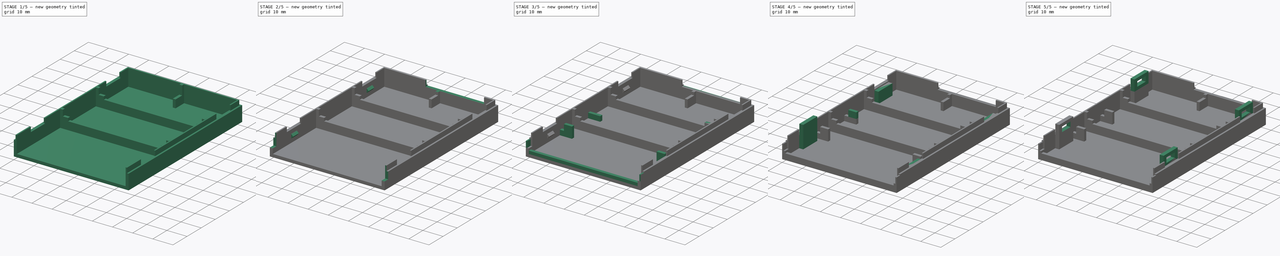
[diagram: build sequence overview — one tinted view per stage of 5, left to right]
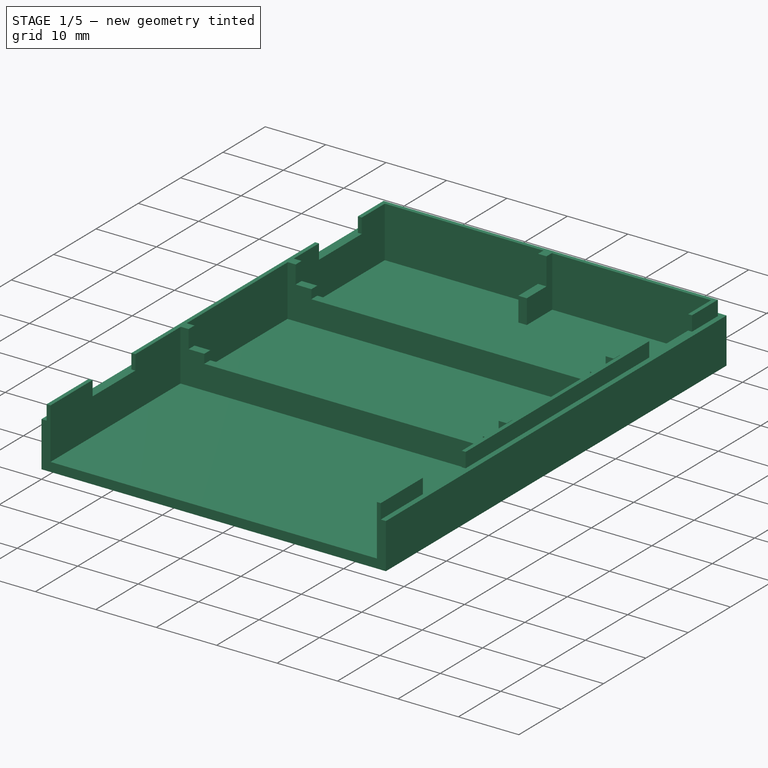
[diagram: stage 1 of 5 — iso view after this stage's code; geometry added in this stage tinted green]
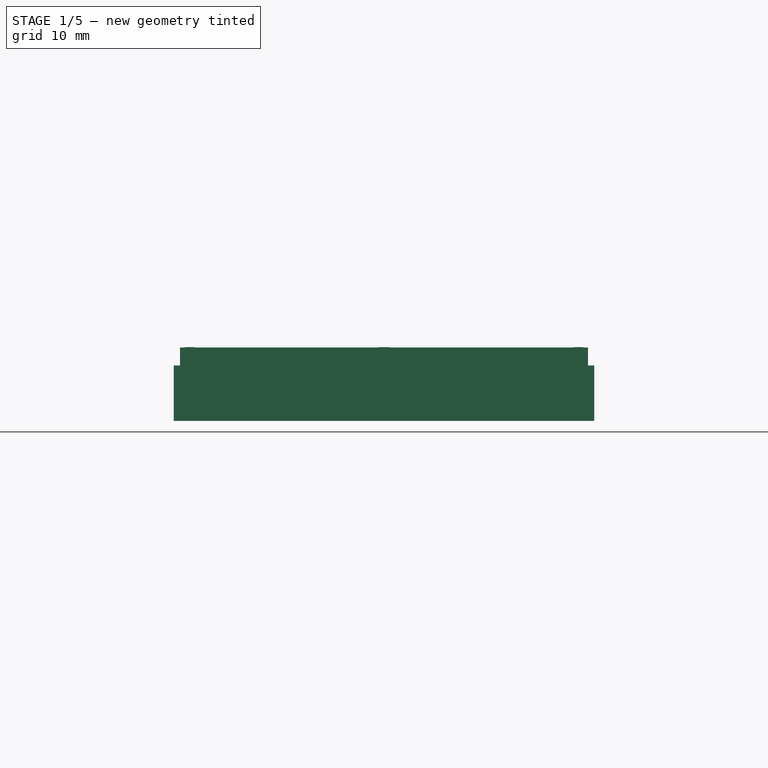
[diagram: stage 1 of 5 — front view after this stage's code; geometry added in this stage tinted green]
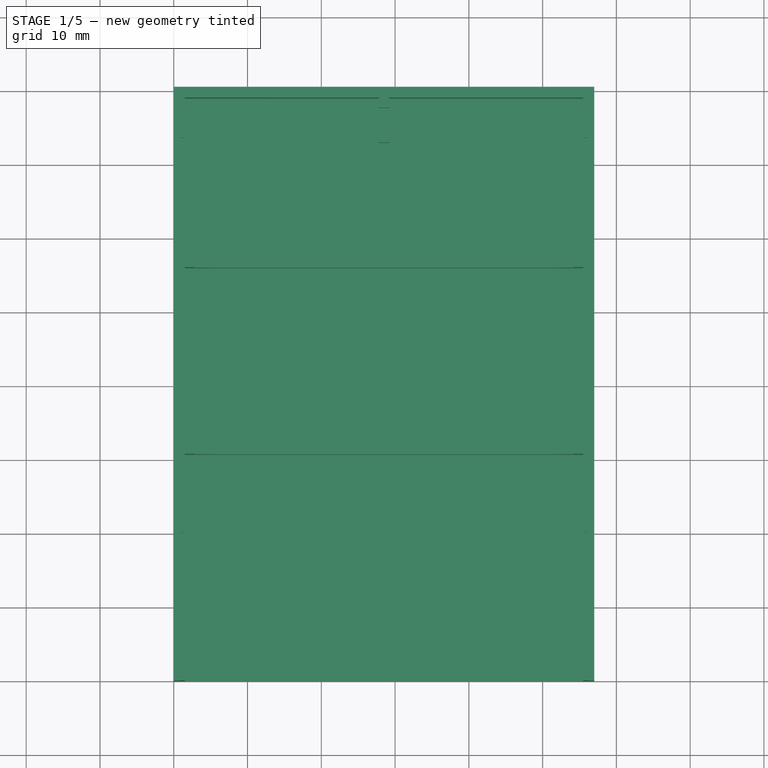
[diagram: stage 1 of 5 — top view after this stage's code; geometry added in this stage tinted green]
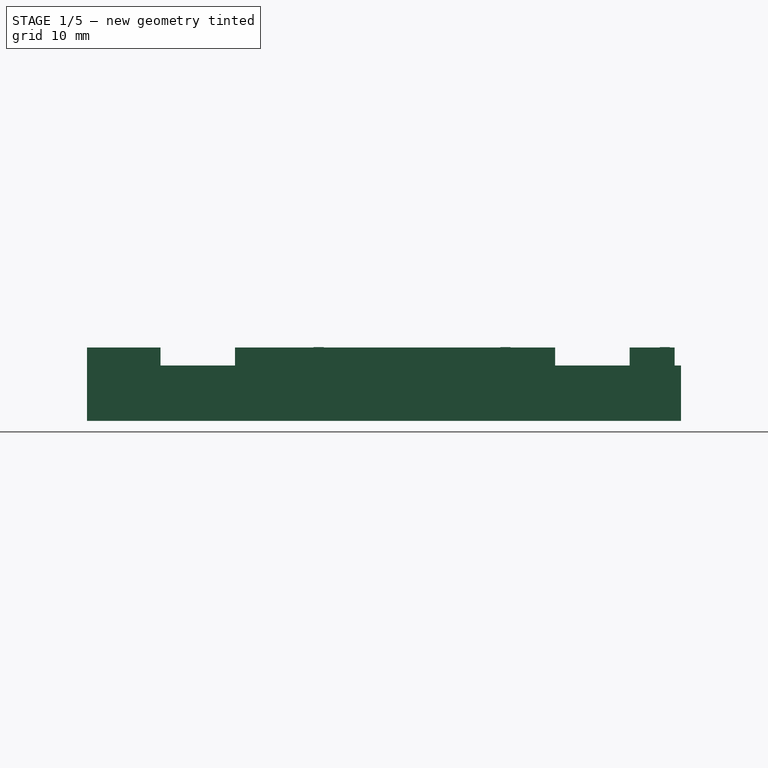
[diagram: stage 1 of 5 — right view after this stage's code; geometry added in this stage tinted green]
FCSTD DOCUMENT  (FreeCAD 0.20R29603 (Git))
Label: cartridge_SD_Cart_JR_v1
License: All rights reserved
LicenseURL: http://en.wikipedia.org/wiki/All_rights_reserved
objects: Sketcher::SketchObject×35, PartDesign::Pad×26, PartDesign::Pocket×9, Spreadsheet::Sheet×2, PartDesign::ShapeBinder×2, PartDesign::Body×2, PartDesign::Chamfer×1
note: 111 computed .brp shape members not serialized (recipe doc carries the construction recipe); baked Part::Feature solids carry a one-line shape summary decoded from their .brp

FEATURE [Spreadsheet::Sheet] Spreadsheet  label="Main"
  cells = A1=Bottom; A2=B_Base_Height; B2(B_Base_Height)=80.5; C2=How "tall" the outer cartridge dimension is; A3=B_Base_Width; B3(B_Base_Width)=57; C3=How "wide" the outer cartridge dimension is; A4=B_Base_Thick; B4(B_Base_Thick)=1.5; C4=How thick the baseplate of the cartridge bottom is; A6=B_Lower_Edge_Width; B6(B_Lower_Edge_Width)=1.5; A7=B_Lower_Edge_Thick; B7(B_Lower_Edge_Thick)=6; A9=B_Upper_Edge_Width; B9(B_Upper_Edge_Width)=0.7; A10=B_Upper_Edge_Thick; B10(B_Upper_Edge_Thick)=2.5; A11=B_Upper_Edge_Tolerance; B11(B_Upper_Edge_Tolerance)=0.05; A13=B_Primary_PCB_Support_Width; B13(B_Primary_PCB_Support_Width)==PCB_Cut_Width - 2 * B_Primary_PCB_Support_Tolerance; A14=B_Primary_PCB_Support_Thick; C14=From top of Base to Top of Upper Edge; A15=B_Primary_PCB_Support_Height_From_Outside_Edge; B15(B_Primary_PCB_Support_Height_From_Outside_Edge)=7.5; A16=B_Primary_PCB_Support_Height; B16(B_Primary_PCB_Support_Height)==B_Primary_PCB_Support_Height_From_Outside_Edge - B_Lower_Edge_Width; A17=B_Primary_PCB_Support_Tolerance; B17(B_Primary_PCB_Support_Tolerance)=0.05; A20=PCB_Internal_Edge_Offset; B20(PCB_Internal_Edge_Offset)=1.5; C20=This is how "inside" the cartridge the pcb edge is; A21=PCB_Edge_To_First_Cut; B21(PCB_Edge_To_First_Cut)=29.2; C21=This is how close to the "front" of the PCB the edge of the first cut is; A22=PCB_Edge_To_Second_Cut; B22(PCB_Edge_To_Second_Cut)=54.5; C22=This is how close to the "front" of the PCB the edge of the second cut is; A23=PCB_Cut_Width; B23(PCB_Cut_Width)=1.5; A25=B_Upper_Edge_Tab_Height_From_Outside_Edge; B25(B_Upper_Edge_Tab_Height_From_Outside_Edge)=2; A26=B_Upper_Edge_Tab_Height; B26(B_Upper_Edge_Tab_Height)==B_Upper_Edge_Tab_Height_From_Outside_Edge - B_Upper_Edge_Width; A27=B_Upper_Edge_Tab_Thick; B27(B_Upper_Edge_Tab_Thick)=3; A29=B_Middle_Edge_Tab_Height_From_Outside_Edge; B29(B_Middle_Edge_Tab_Height_From_Outside_Edge)=6; A30=B_Middle_Edge_Tab_Thick_From_Upper_Cut; B30(B_Middle_Edge_Tab_Thick_From_Upper_Cut)=1.5; A31=B_Middle_Edge_Tolerance; B31(B_Middle_Edge_Tolerance)=0.05; A32=B_Middle_Edge_Tab_Height_From_Outside_Edge_with_tolerance; B32(B_Middle_Edge_Tab_Height_From_Outside_Edge_with_tolerance)==B_Middle_Edge_Tab_Height_From_Outside_Edge - B_Middle_Edge_Tolerance; A34=B_Catch_Width; B34(B_Catch_Width)=4; A35=B_Catch_Height; B35(B_Catch_Height)=2; A36=B_Catch_Thick; B36(B_Catch_Thick)=1; A38=B_Base_Latch_Hole; B38(B_Base_Latch_Hole)=2; A40=B_Cartridge_Connector_Clearance; B40(B_Cartridge_Connector_Clearance)=3.5; A41=B_Cartridge_Connector_Clearance_Thick; B41(B_Cartridge_Connector_Clearance_Thick)=2.5; A50=Top; A51=T_Base_Height; B51(T_Base_Height)=80.5; A52=T_Base_Width; B52(T_Base_Width)=57; A53=T_Base_Thick; B53(T_Base_Thick)=1.5; A55=T_Lower_Edge_Width; B55(T_Lower_Edge_Width)=1.5; A56=T_Lower_Edge_Thick; B56(T_Lower_Edge_Thick)=2.5; A58=T_Upper_Edge_Tolerance; B58(T_Upper_Edge_Tolerance)=0.05; A59=T_Upper_Edge_Width; B59(T_Upper_Edge_Width)=0.7; A60=T_Upper_Edge_Thick; B60(T_Upper_Edge_Thick)=3; A62=T_Front_Lip_Width; B62(T_Front_Lip_Width)=1.5; A63=T_Front_Lip_Thick; B63(T_Front_Lip_Thick)=1.5; A65=T_Front_Holddown_Distance; B65(T_Front_Holddown_Distance)=22; A66=T_Front_Holddown_Width; B66(T_Front_Holddown_Width)=6; A67=T_Front_Holddown_Height; B67(T_Front_Holddown_Height)=1.5; A68=T_Front_Holddown_Thick1; B68(T_Front_Holddown_Thick1)==T_Lower_Edge_Thick; A70=T_Rear_Holddown_Distance; B70(T_Rear_Holddown_Distance)==PCB_Internal_Edge_Offset + PCB_Edge_To_Second_Cut; A72=T_Mid_Holddown_Inner_Gap_From_Front; B72(T_Mid_Holddown_Inner_Gap_From_Front)=18.5; A74=T_All_Holddown_Width; B74(T_All_Holddown_Width)=4; A75=T_All_Holddown_Thick2; B75(T_All_Holddown_Thick2)==T_Upper_Edge_Thick; A77=T_Pin_Front_Distance; B77(T_Pin_Front_Distance)=10; A78=T_Pin_Gap_Distance; B78(T_Pin_Gap_Distance)=43.5; A79=T_Pin_Base_Height; B79(T_Pin_Base_Height)=10; A80=T_Pin_Base_Width; B80(T_Pin_Base_Width)=2; C80=1.5 OG; A82=T_Pin_Upper_Thick; B82(T_Pin_Upper_Thick)=5.5; A84=T_Pin_Upper_Bezel; B84(T_Pin_Upper_Bezel)=1.5; A85=T_Pin_Upper_Bezel_Horizontal; B85(T_Pin_Upper_Bezel_Horizontal)=2
FEATURE [Sketcher::SketchObject] Sketch  label="B_Base_Sketch"
  FullyConstrained = true
  MapMode = 5
  Support = -> [XY_Plane]
  expr: Constraints[10] = <<Main>>.B_Base_Height
  expr: Constraints[9] = <<Main>>.B_Base_Width
  sketch-geometry (4):
    g0: LineSegment StartX=0 StartY=0 StartZ=0 EndX=57 EndY=0 EndZ=0
    g1: LineSegment StartX=57 StartY=0 StartZ=0 EndX=57 EndY=80.5 EndZ=0
    g2: LineSegment StartX=57 StartY=80.5 StartZ=0 EndX=0 EndY=80.5 EndZ=0
    g3: LineSegment StartX=0 StartY=80.5 StartZ=0 EndX=0 EndY=0 EndZ=0
  constraints (11):
    c: Coincident(g0,g1)
    c: Coincident(g1,g2)
    c: Coincident(g2,g3)
    c: Coincident(g3,g0)
    c: Horizontal(g0)
    c: Horizontal(g2)
    c: Vertical(g1)
    c: Vertical(g3)
    c: Coincident(g0,g-1)
    c: DistanceX(g0,g0) = 57
    c: DistanceY(g3,g3) = 80.5
FEATURE [PartDesign::Pad] Pad  label="B_Base"
  Direction = (0,0,1)
  Length = 1.5
  Length2 = 10
  Profile = -> Sketch
  ReferenceAxis = -> Sketch [N_Axis]
  Type = 0
  expr: Length = <<Main>>.B_Base_Thick
FEATURE [Sketcher::SketchObject] Sketch001  label="B_Lower_Edge_Sketch"
  ExternalGeometry = -> [Pad]
  FullyConstrained = true
  MapMode = 5
  Placement = pos=(0,0,1.5) rot=(0,0,1;0rad)
  Support = -> [Pad]
  expr: Constraints[19] = <<Main>>.B_Lower_Edge_Width
  expr: Constraints[21] = <<Main>>.B_Lower_Edge_Width
  sketch-geometry (8):
    g0: LineSegment StartX=0 StartY=0 StartZ=0 EndX=0 EndY=80.5 EndZ=0
    g1: LineSegment StartX=0 StartY=80.5 StartZ=0 EndX=57 EndY=80.5 EndZ=0
    g2: LineSegment StartX=57 StartY=80.5 StartZ=0 EndX=57 EndY=0 EndZ=0
    g3: LineSegment StartX=57 StartY=0 StartZ=0 EndX=55.5 EndY=0 EndZ=0
    g4: LineSegment StartX=55.5 StartY=0 StartZ=0 EndX=55.5 EndY=79 EndZ=0
    g5: LineSegment StartX=55.5 StartY=79 StartZ=0 EndX=1.5 EndY=79 EndZ=0
    g6: LineSegment StartX=1.5 StartY=79 StartZ=0 EndX=1.5 EndY=0 EndZ=0
    g7: LineSegment StartX=0 StartY=0 StartZ=0 EndX=1.5 EndY=0 EndZ=0
  constraints (22):
    c: Coincident(g0,g-1)
    c: Vertical(g0)
    c: Coincident(g1,g0)
    c: Coincident(g1,g-3)
    c: Horizontal(g1)
    c: Coincident(g2,g1)
    c: Vertical(g2)
    c: Coincident(g3,g2)
    c: Horizontal(g3)
    c: Coincident(g4,g3)
    c: Vertical(g4)
    c: Coincident(g5,g4)
    c: Horizontal(g5)
    c: Coincident(g6,g5)
    c: Vertical(g6)
    c: Coincident(g7,g0)
    c: Coincident(g7,g6)
    c: Horizontal(g7)
    c: Horizontal(g6,g3)
    c: DistanceX(g7,g7) = 1.5
    c: Equal(g3,g7)
    c: DistanceY(g5,g0) = 1.5
FEATURE [PartDesign::Pad] Pad001  label="B_Lower_Edge"
  BaseFeature = -> Pad
  Direction = (0,0,1)
  Length = 6
  Length2 = 10
  Profile = -> Sketch001
  ReferenceAxis = -> Sketch001 [N_Axis]
  Type = 0
  expr: Length = <<Main>>.B_Lower_Edge_Thick
FEATURE [Sketcher::SketchObject] Sketch002  label="B_Upper_Edge_Sketch"
  ExternalGeometry = -> [Pad001]
  FullyConstrained = true
  MapMode = 5
  Placement = pos=(0,0,7.5) rot=(0,0,1;0rad)
  Support = -> [Pad001]
  expr: Constraints[18] = <<Main>>.B_Upper_Edge_Width - <<Main>>.B_Upper_Edge_Tolerance
  expr: Constraints[19] = <<Main>>.B_Upper_Edge_Width - <<Main>>.B_Upper_Edge_Tolerance
  sketch-geometry (8):
    g0: LineSegment StartX=1.5 StartY=0 StartZ=0 EndX=0.85 EndY=0 EndZ=0
    g1: LineSegment StartX=0.85 StartY=0 StartZ=0 EndX=0.85 EndY=79.65 EndZ=0
    g2: LineSegment StartX=1.5 StartY=0 StartZ=0 EndX=1.5 EndY=79 EndZ=0
    g3: LineSegment StartX=0.85 StartY=79.65 StartZ=0 EndX=56.15 EndY=79.65 EndZ=0
    g4: LineSegment StartX=1.5 StartY=79 StartZ=0 EndX=55.5 EndY=79 EndZ=0
    g5: LineSegment StartX=56.15 StartY=79.65 StartZ=0 EndX=56.15 EndY=0 EndZ=0
    g6: LineSegment StartX=55.5 StartY=79 StartZ=0 EndX=55.5 EndY=0 EndZ=0
    g7: LineSegment StartX=56.15 StartY=0 StartZ=0 EndX=55.5 EndY=0 EndZ=0
  constraints (22):
    c: Coincident(g0,g-3)
    c: Coincident(g1,g0)
    c: Vertical(g1)
    c: Coincident(g2,g0)
    c: Vertical(g2)
    c: Coincident(g3,g1)
    c: Horizontal(g3)
    c: Coincident(g4,g2)
    c: Horizontal(g4)
    c: Coincident(g5,g3)
    c: Vertical(g5)
    c: Coincident(g6,g4)
    c: Vertical(g6)
    c: Coincident(g7,g5)
    c: Coincident(g7,g6)
    c: Horizontal(g7)
    c: Coincident(g4,g-4)
    c: Horizontal(g0)
    c: DistanceY(g4,g3) = 0.65
    c: DistanceX(g0,g0) = 0.65
    c: Equal(g0,g7)
    c: Horizontal(g6,g0)
FEATURE [PartDesign::Pad] Pad002  label="B_Upper_Edge"
  BaseFeature = -> Pad001
  Direction = (0,0,1)
  Length = 2.45
  Length2 = 10
  Profile = -> Sketch002
  ReferenceAxis = -> Sketch002 [N_Axis]
  Type = 0
  expr: Length = <<Main>>.B_Upper_Edge_Thick - <<Main>>.B_Upper_Edge_Tolerance
FEATURE [PartDesign::ShapeBinder] ShapeBinder  label="B_Core_Reference"
  Support = -> [Pad002]
  TraceSupport = false
FEATURE [Sketcher::SketchObject] Sketch003  label="B_Primary_PCB_Support_Sketch"
  ExternalGeometry = -> [Pad002]
  FullyConstrained = true
  MapMode = 5
  Placement = pos=(0,0,1.5) rot=(0,0,1;0rad)
  Support = -> [Pad002]
  expr: Constraints[10] = <<Main>>.PCB_Internal_Edge_Offset
  expr: Constraints[12] = <<Main>>.PCB_Edge_To_First_Cut
  expr: Constraints[14] = <<Main>>.PCB_Edge_To_Second_Cut
  expr: Constraints[15] = <<Main>>.B_Primary_PCB_Support_Width
  expr: Constraints[27] = <<Main>>.B_Primary_PCB_Support_Width
  expr: Constraints[39] = <<Main>>.B_Primary_PCB_Support_Width
  expr: Constraints[43] = <<Main>>.B_Primary_PCB_Support_Height
  sketch-geometry (17):
    g0: LineSegment StartX=1.5 StartY=32.1 StartZ=0 EndX=55.5 EndY=32.1 EndZ=0
    g1: LineSegment StartX=55.5 StartY=32.1 StartZ=0 EndX=55.5 EndY=30.7 EndZ=0
    g2: LineSegment StartX=55.5 StartY=30.7 StartZ=0 EndX=1.5 EndY=30.7 EndZ=0
    g3: LineSegment StartX=1.5 StartY=30.7 StartZ=0 EndX=1.5 EndY=32.1 EndZ=0
    g4: GeomPoint X=28.5 Y=0 Z=0
    g5: GeomPoint X=28.5 Y=1.5 Z=0
    g6: GeomPoint X=28.5 Y=30.7 Z=0
    g7: GeomPoint X=28.5 Y=56 Z=0
    g8: LineSegment StartX=1.5 StartY=57.4 StartZ=0 EndX=55.5 EndY=57.4 EndZ=0
    g9: LineSegment StartX=55.5 StartY=57.4 StartZ=0 EndX=55.5 EndY=56 EndZ=0
    g10: LineSegment StartX=55.5 StartY=56 StartZ=0 EndX=1.5 EndY=56 EndZ=0
    g11: LineSegment StartX=1.5 StartY=56 StartZ=0 EndX=1.5 EndY=57.4 EndZ=0
    g12: LineSegment StartX=27.8 StartY=79 StartZ=0 EndX=29.2 EndY=79 EndZ=0
    g13: LineSegment StartX=29.2 StartY=79 StartZ=0 EndX=29.2 EndY=73 EndZ=0
    g14: LineSegment StartX=29.2 StartY=73 StartZ=0 EndX=27.8 EndY=73 EndZ=0
    g15: LineSegment StartX=27.8 StartY=73 StartZ=0 EndX=27.8 EndY=79 EndZ=0
    g16: GeomPoint X=28.5 Y=73 Z=0
  constraints (44):
    c: Coincident(g0,g1)
    c: Coincident(g1,g2)
    c: Coincident(g2,g3)
    c: Coincident(g3,g0)
    c: Horizontal(g0)
    c: Horizontal(g2)
    c: Vertical(g1)
    c: Vertical(g3)
    c: Symmetric(g-3,g-4,g4)
    c: Vertical(g5,g4)
    c: DistanceY(g4,g5) = 1.5
    c: Vertical(g5,g6)
    c: DistanceY(g5,g6) = 29.2
    c: Vertical(g7,g4)
    c: DistanceY(g5,g7) = 54.5
    c: DistanceY(g3,g3) = 1.4
    c: Vertical(g2,g-3)
    c: Vertical(g1,g-4)
    c: Horizontal(g2,g6)
    c: Coincident(g8,g9)
    c: Coincident(g9,g10)
    c: Coincident(g10,g11)
    c: Coincident(g11,g8)
    c: Horizontal(g8)
    c: Horizontal(g10)
    c: Vertical(g9)
    c: Vertical(g11)
    c: DistanceY(g11,g11) = 1.4
    c: Horizontal(g10,g7)
    c: Vertical(g10,g-3)
    c: Vertical(g9,g-4)
    c: Coincident(g12,g13)
    c: Coincident(g13,g14)
    c: Coincident(g14,g15)
    c: Coincident(g15,g12)
    c: Horizontal(g12)
    c: Horizontal(g14)
    c: Vertical(g13)
    c: Vertical(g15)
    c: DistanceX(g14,g14) = 1.4
    c: Horizontal(g12,g-5)
    c: Symmetric(g14,g13,g16)
    c: Vertical(g16,g4)
    c: DistanceY(g15,g15) = 6
FEATURE [PartDesign::Pad] Pad003  label="B_Primary_PCB_Support"
  BaseFeature = -> Pad002
  Direction = (0,0,1)
  Length = 8.5
  Length2 = 10
  Profile = -> Sketch003
  ReferenceAxis = -> Sketch003 [N_Axis]
  Type = 0
  expr: Length = <<Main>>.B_Lower_Edge_Thick + <<Main>>.B_Upper_Edge_Thick
FEATURE [Sketcher::SketchObject] Sketch004  label="B_Upper_Cut_Sketch"
  ExternalGeometry = -> [Pad003]
  FullyConstrained = true
  MapMode = 5
  Placement = pos=(0,0,10) rot=(0,0,1;0rad)
  Support = -> [Pad003]
  expr: Constraints[10] = <<Main>>.B_Upper_Edge_Tab_Height_From_Outside_Edge
  expr: Constraints[15] = <<Main>>.B_Upper_Edge_Tab_Height_From_Outside_Edge
  sketch-geometry (8):
    g0: LineSegment StartX=2.85 StartY=77.65 StartZ=0 EndX=54.15 EndY=77.65 EndZ=0
    g1: LineSegment StartX=54.15 StartY=77.65 StartZ=0 EndX=54.15 EndY=0 EndZ=0
    g2: LineSegment StartX=54.15 StartY=0 StartZ=0 EndX=2.85 EndY=0 EndZ=0
    g3: LineSegment StartX=2.85 StartY=0 StartZ=0 EndX=2.85 EndY=77.65 EndZ=0
    g4: GeomPoint X=28.5 Y=79.65 Z=0
    g5: GeomPoint X=28.5 Y=77.65 Z=0
    g6: GeomPoint X=28.5 Y=77.65 Z=0
    g7: GeomPoint X=0.85 Y=39.825 Z=0
  constraints (16):
    c: Coincident(g0,g1)
    c: Coincident(g1,g2)
    c: Coincident(g2,g3)
    c: Coincident(g3,g0)
    c: Horizontal(g0)
    c: Horizontal(g2)
    c: Vertical(g1)
    c: Vertical(g3)
    c: Symmetric(g-3,g-4,g4)
    c: Vertical(g5,g4)
    c: DistanceY(g5,g4) = 2
    c: Symmetric(g0,g0,g6)
    c: Coincident(g6,g5)
    c: Symmetric(g-5,g-3,g7)
    c: Horizontal(g2,g-5)
    c: DistanceX(g7,g0) = 2
FEATURE [PartDesign::Pocket] Pocket  label="B_Upper_Cut"
  BaseFeature = -> Pad003
  Direction = (0,0,-1)
  Length = 3
  Length2 = 5
  Profile = -> Sketch004
  ReferenceAxis = -> Sketch004 [N_Axis]
  Type = 0
  expr: Length = <<Main>>.B_Upper_Edge_Tab_Thick
FEATURE [Sketcher::SketchObject] Sketch005  label="B_Middle_Cut_Sketch"
  ExternalGeometry = -> [Pocket]
  FullyConstrained = true
  MapMode = 5
  Placement = pos=(0,0,7) rot=(0,0,1;0rad)
  Support = -> [Pocket]
  expr: Constraints[12] = <<Main>>.B_Middle_Edge_Tab_Height_From_Outside_Edge_with_tolerance - 0.5
  sketch-geometry (6):
    g0: LineSegment StartX=5.45 StartY=77.65 StartZ=0 EndX=51.55 EndY=77.65 EndZ=0
    g1: LineSegment StartX=51.55 StartY=77.65 StartZ=0 EndX=51.55 EndY=0 EndZ=0
    g2: LineSegment StartX=51.55 StartY=0 StartZ=0 EndX=5.45 EndY=0 EndZ=0
    g3: LineSegment StartX=5.45 StartY=0 StartZ=0 EndX=5.45 EndY=77.65 EndZ=0
    g4: GeomPoint X=28.5 Y=77.65 Z=0
    g5: GeomPoint X=28.5 Y=77.65 Z=0
  constraints (13):
    c: Coincident(g0,g1)
    c: Coincident(g1,g2)
    c: Coincident(g2,g3)
    c: Coincident(g3,g0)
    c: Horizontal(g0)
    c: Horizontal(g2)
    c: Vertical(g1)
    c: Vertical(g3)
    c: Symmetric(g0,g0,g4)
    c: Symmetric(g-3,g-4,g5)
    c: Coincident(g5,g4)
    c: Horizontal(g-5,g2)
    c: DistanceX(g-1,g2) = 5.45
FEATURE [PartDesign::Pocket] Pocket001  label="B_Middle_Cut"
  BaseFeature = -> Pocket
  Direction = (0,0,-1)
  Length = 1.5
  Length2 = 5
  Profile = -> Sketch005
  ReferenceAxis = -> Sketch005 [N_Axis]
  Type = 0
  expr: Length = <<Main>>.B_Middle_Edge_Tab_Thick_From_Upper_Cut
FEATURE [Sketcher::SketchObject] Sketch013  label="T_Forward_Holddown2L_Sketch"
  ExternalGeometry = -> [Pad010]
  FullyConstrained = true
  MapMode = 5
  Placement = pos=(0,0,4) rot=(0,0,1;0rad)
  Support = -> [Pad010]
  expr: Constraints[9] = <<Main>>.T_All_Holddown_Width
  sketch-geometry (4):
    g0: LineSegment StartX=7.5 StartY=23.5 StartZ=0 EndX=7.5 EndY=22 EndZ=0
    g1: LineSegment StartX=7.5 StartY=22 StartZ=0 EndX=3.5 EndY=22 EndZ=0
    g2: LineSegment StartX=3.5 StartY=23.5 StartZ=0 EndX=7.5 EndY=23.5 EndZ=0
    g3: LineSegment StartX=3.5 StartY=23.5 StartZ=0 EndX=3.5 EndY=22 EndZ=0
  constraints (10):
    c: Coincident(g0,g-4)
    c: Coincident(g0,g-3)
    c: Coincident(g1,g0)
    c: Horizontal(g1)
    c: Coincident(g2,g0)
    c: Horizontal(g2)
    c: Coincident(g3,g2)
    c: Coincident(g3,g1)
    c: Vertical(g3)
    c: DistanceX(g2,g2) = 4
FEATURE [Sketcher::SketchObject] Sketch027  label="B_Upper_Edge_Pin_Hole_Sketch"
  ExternalGeometry = -> [Pocket001]
  FullyConstrained = true
  MapMode = 5
  Placement = pos=(56.15,0,0) rot=(0.57735,0.57735,0.57735;2.0944rad)
  Support = -> [Pocket001]
  expr: Constraints[11] = <<Main>>.T_Pin_Base_Height / 2 + <<Main>>.T_Pin_Front_Distance
  expr: Constraints[21] = <<Main>>.T_Pin_Gap_Distance + <<Main>>.T_Pin_Base_Height
  expr: Constraints[22] = <<Main>>.T_Pin_Base_Height + 2 * <<Main>>.B_Upper_Edge_Tolerance
  expr: Constraints[23] = <<Main>>.T_Pin_Base_Height + 2 * <<Main>>.B_Middle_Edge_Tolerance
  sketch-geometry (10):
    g0: LineSegment StartX=9.95 StartY=9.95 StartZ=0 EndX=20.05 EndY=9.95 EndZ=0
    g1: LineSegment StartX=20.05 StartY=9.95 StartZ=0 EndX=20.05 EndY=7.5 EndZ=0
    g2: LineSegment StartX=20.05 StartY=7.5 StartZ=0 EndX=9.95 EndY=7.5 EndZ=0
    g3: LineSegment StartX=9.95 StartY=7.5 StartZ=0 EndX=9.95 EndY=9.95 EndZ=0
    g4: GeomPoint X=15 Y=9.95 Z=0
    g5: LineSegment StartX=63.45 StartY=9.95 StartZ=0 EndX=73.55 EndY=9.95 EndZ=0
    g6: LineSegment StartX=73.55 StartY=9.95 StartZ=0 EndX=73.55 EndY=7.5 EndZ=0
    g7: LineSegment StartX=73.55 StartY=7.5 StartZ=0 EndX=63.45 EndY=7.5 EndZ=0
    g8: LineSegment StartX=63.45 StartY=7.5 StartZ=0 EndX=63.45 EndY=9.95 EndZ=0
    g9: GeomPoint X=68.5 Y=9.95 Z=0
  constraints (26):
    c: Coincident(g0,g1)
    c: Coincident(g1,g2)
    c: Coincident(g2,g3)
    c: Coincident(g3,g0)
    c: Horizontal(g0)
    c: Horizontal(g2)
    c: Vertical(g1)
    c: Vertical(g3)
    c: Horizontal(g0,g-3)
    c: Horizontal(g2,g-4)
    c: Symmetric(g0,g0,g4)
    c: DistanceX(g-3,g4) = 15
    c: Coincident(g5,g6)
    c: Coincident(g6,g7)
    c: Coincident(g7,g8)
    c: Coincident(g8,g5)
    c: Horizontal(g5)
    c: Horizontal(g7)
    c: Vertical(g6)
    c: Vertical(g8)
    c: Symmetric(g5,g5,g9)
    c: DistanceX(g4,g9) = 53.5
    c: DistanceX(g0,g0) = 10.1
    c: DistanceX(g5,g5) = 10.1
    c: Horizontal(g5,g0)
    c: Horizontal(g7,g1)
FEATURE [PartDesign::Pocket] Pocket003  label="B_Upper_Edge_Pin_Hole"
  BaseFeature = -> Pocket001
  Direction = (-1,0,0)
  Length = 5
  Length2 = 5
  Profile = -> Sketch027
  ReferenceAxis = -> Sketch027 [N_Axis]
  Type = 1
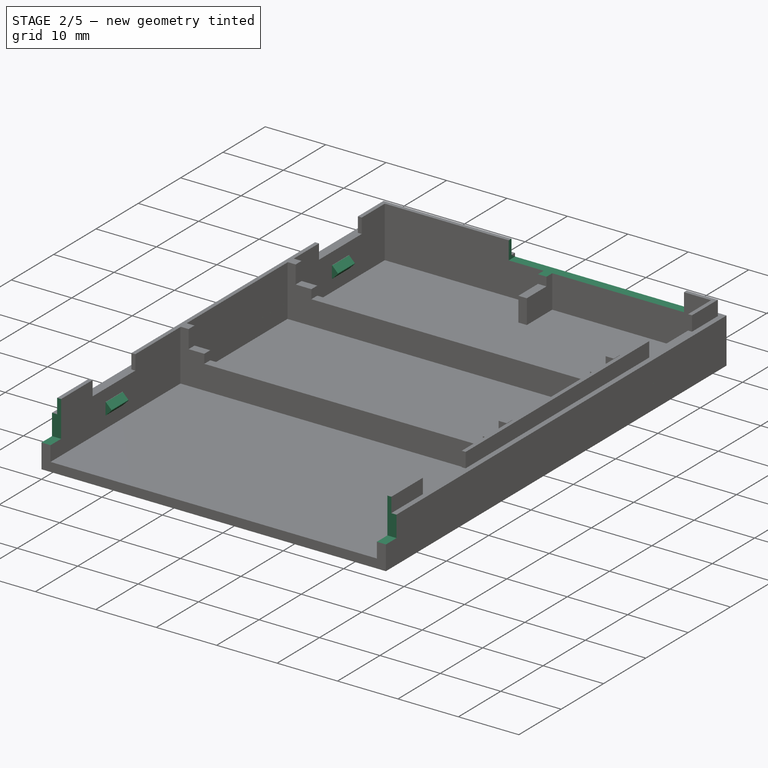
[diagram: stage 2 of 5 — iso view after this stage's code; geometry added in this stage tinted green]
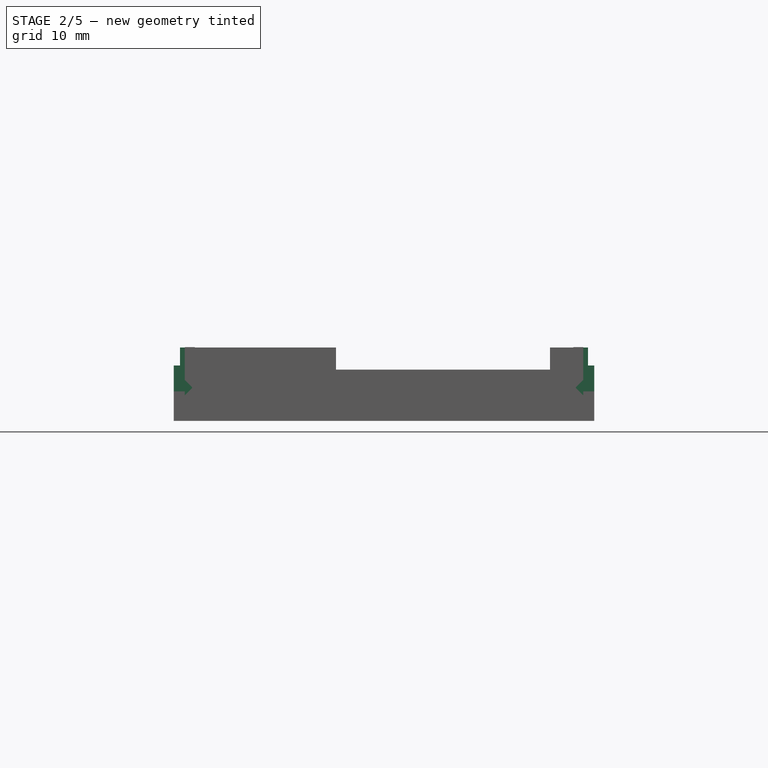
[diagram: stage 2 of 5 — front view after this stage's code; geometry added in this stage tinted green]
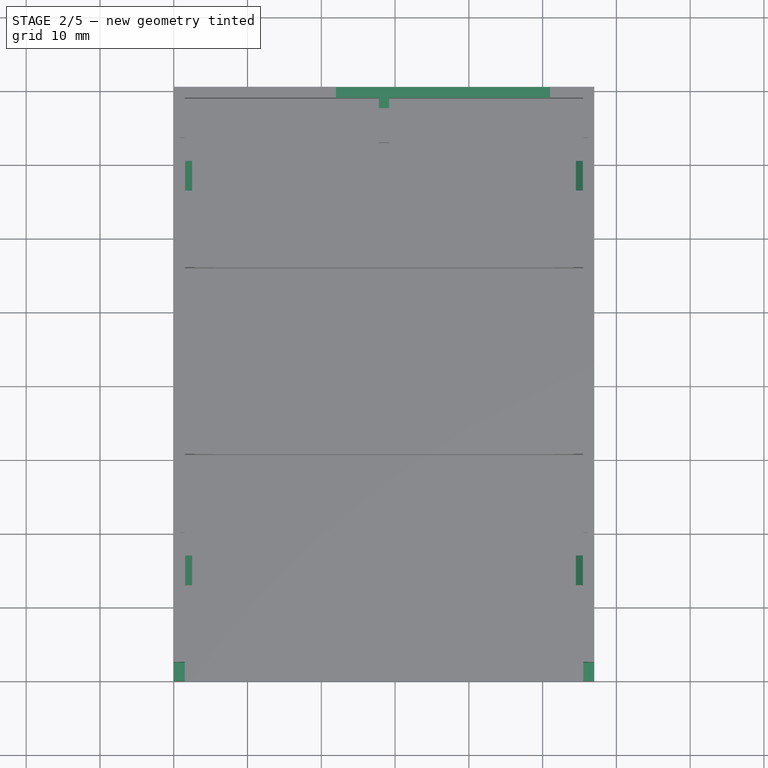
[diagram: stage 2 of 5 — top view after this stage's code; geometry added in this stage tinted green]
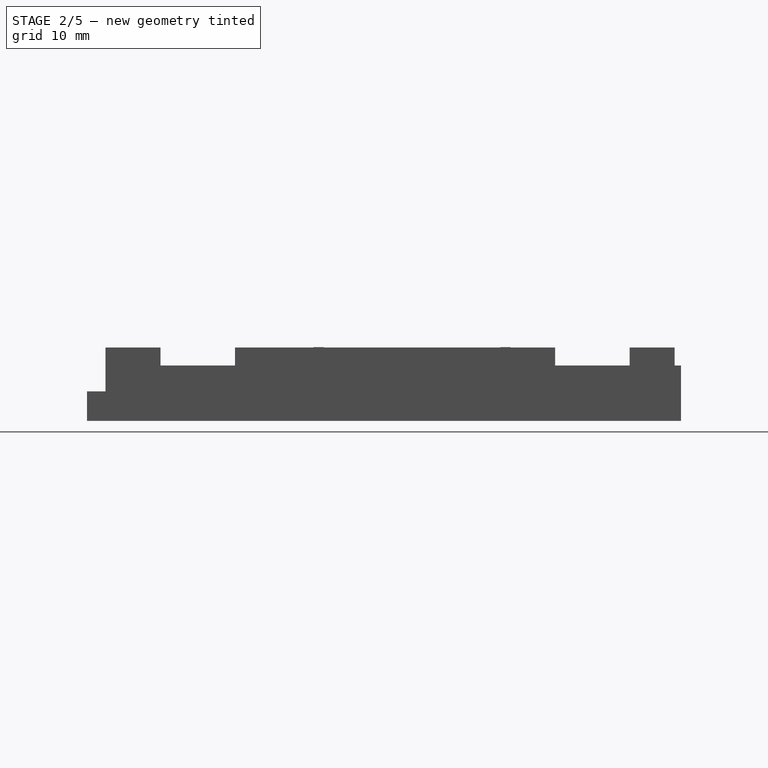
[diagram: stage 2 of 5 — right view after this stage's code; geometry added in this stage tinted green]
FEATURE [PartDesign::ShapeBinder] ShapeBinder001  label="B_MinimumWorking"
  Support = -> [Pocket001]
  TraceSupport = false
FEATURE [Sketcher::SketchObject] Sketch006  label="T_Base_Sketch"
  FullyConstrained = true
  MapMode = 5
  Support = -> [XY_Plane001]
  expr: Constraints[10] = <<Main>>.T_Base_Height
  expr: Constraints[9] = <<Main>>.T_Base_Width
  sketch-geometry (4):
    g0: LineSegment StartX=0 StartY=0 StartZ=0 EndX=57 EndY=0 EndZ=0
    g1: LineSegment StartX=57 StartY=0 StartZ=0 EndX=57 EndY=80.5 EndZ=0
    g2: LineSegment StartX=57 StartY=80.5 StartZ=0 EndX=0 EndY=80.5 EndZ=0
    g3: LineSegment StartX=0 StartY=80.5 StartZ=0 EndX=0 EndY=0 EndZ=0
  constraints (11):
    c: Coincident(g0,g1)
    c: Coincident(g1,g2)
    c: Coincident(g2,g3)
    c: Coincident(g3,g0)
    c: Horizontal(g0)
    c: Horizontal(g2)
    c: Vertical(g1)
    c: Vertical(g3)
    c: Coincident(g0,g-1)
    c: DistanceX(g0,g0) = 57
    c: DistanceY(g3,g3) = 80.5
FEATURE [PartDesign::Pad] Pad004  label="T_Base"
  Direction = (0,0,1)
  Length = 1.5
  Length2 = 10
  Profile = -> Sketch006
  ReferenceAxis = -> Sketch006 [N_Axis]
  Type = 0
  expr: Length = <<Main>>.T_Base_Thick
FEATURE [Sketcher::SketchObject] Sketch007  label="T_Lower_Edge_Sketch"
  ExternalGeometry = -> [Pad004]
  FullyConstrained = true
  MapMode = 5
  Placement = pos=(0,0,1.5) rot=(0,0,1;0rad)
  Support = -> [Pad004]
  expr: Constraints[19] = <<Main>>.T_Lower_Edge_Width
  expr: Constraints[20] = <<Main>>.T_Lower_Edge_Width
  sketch-geometry (8):
    g0: LineSegment StartX=0 StartY=0 StartZ=0 EndX=0 EndY=80.5 EndZ=0
    g1: LineSegment StartX=0 StartY=80.5 StartZ=0 EndX=57 EndY=80.5 EndZ=0
    g2: LineSegment StartX=57 StartY=80.5 StartZ=0 EndX=57 EndY=0 EndZ=0
    g3: LineSegment StartX=57 StartY=0 StartZ=0 EndX=55.5 EndY=0 EndZ=0
    g4: LineSegment StartX=55.5 StartY=0 StartZ=0 EndX=55.5 EndY=79 EndZ=0
    g5: LineSegment StartX=55.5 StartY=79 StartZ=0 EndX=1.5 EndY=79 EndZ=0
    g6: LineSegment StartX=1.5 StartY=79 StartZ=0 EndX=1.5 EndY=0 EndZ=0
    g7: LineSegment StartX=0 StartY=0 StartZ=0 EndX=1.5 EndY=0 EndZ=0
  constraints (22):
    c: Coincident(g0,g-1)
    c: Vertical(g0)
    c: Coincident(g1,g0)
    c: Coincident(g1,g-3)
    c: Horizontal(g1)
    c: Coincident(g2,g1)
    c: Vertical(g2)
    c: Horizontal(g2,g0)
    c: Coincident(g3,g2)
    c: Horizontal(g3)
    c: Coincident(g4,g3)
    c: Vertical(g4)
    c: Coincident(g5,g4)
    c: Horizontal(g5)
    c: Coincident(g6,g5)
    c: Vertical(g6)
    c: Coincident(g7,g0)
    c: Coincident(g7,g6)
    c: Horizontal(g7)
    c: DistanceY(g4,g1) = 1.5
    c: DistanceX(g7,g7) = 1.5
    c: Equal(g7,g3)
FEATURE [PartDesign::Pad] Pad005  label="T_Lower_Edge"
  BaseFeature = -> Pad004
  Direction = (0,0,1)
  Length = 2.5
  Length2 = 10
  Profile = -> Sketch007
  ReferenceAxis = -> Sketch007 [N_Axis]
  Type = 0
  expr: Length = <<Main>>.T_Lower_Edge_Thick
FEATURE [Sketcher::SketchObject] Sketch028  label="B_Catch_L_Sketch"
  ExternalGeometry = -> [Pocket003]
  FullyConstrained = true
  MapMode = 5
  Placement = pos=(1.5,0,0) rot=(0.57735,0.57735,0.57735;2.0944rad)
  Support = -> [Pocket003]
  expr: Constraints[19] = <<Main>>.B_Catch_Width
  expr: Constraints[21] = <<Main>>.B_Catch_Height
  expr: Constraints[27] = <<Main>>.T_Pin_Upper_Bezel + 0.5
  sketch-geometry (12):
    g0: LineSegment StartX=13 StartY=5.5 StartZ=0 EndX=17 EndY=5.5 EndZ=0
    g1: LineSegment StartX=17 StartY=5.5 StartZ=0 EndX=17 EndY=3.5 EndZ=0
    g2: LineSegment StartX=17 StartY=3.5 StartZ=0 EndX=13 EndY=3.5 EndZ=0
    g3: LineSegment StartX=13 StartY=3.5 StartZ=0 EndX=13 EndY=5.5 EndZ=0
    g4: LineSegment StartX=66.5 StartY=5.5 StartZ=0 EndX=70.5 EndY=5.5 EndZ=0
    g5: LineSegment StartX=70.5 StartY=5.5 StartZ=0 EndX=70.5 EndY=3.5 EndZ=0
    g6: LineSegment StartX=70.5 StartY=3.5 StartZ=0 EndX=66.5 EndY=3.5 EndZ=0
    g7: LineSegment StartX=66.5 StartY=3.5 StartZ=0 EndX=66.5 EndY=5.5 EndZ=0
    g8: GeomPoint X=15 Y=7.5 Z=0
    g9: GeomPoint X=68.5 Y=7.5 Z=0
    g10: GeomPoint X=68.5 Y=5.5 Z=0
    g11: GeomPoint X=15 Y=3.5 Z=0
  constraints (28):
    c: Coincident(g0,g1)
    c: Coincident(g1,g2)
    c: Coincident(g2,g3)
    c: Coincident(g3,g0)
    c: Horizontal(g0)
    c: Horizontal(g2)
    c: Vertical(g1)
    c: Vertical(g3)
    c: Coincident(g4,g5)
    c: Coincident(g5,g6)
    c: Coincident(g6,g7)
    c: Coincident(g7,g4)
    c: Horizontal(g4)
    c: Horizontal(g6)
    c: Vertical(g5)
    c: Vertical(g7)
    c: Horizontal(g0,g4)
    c: Horizontal(g1,g6)
    c: Equal(g4,g0)
    c: DistanceX(g0,g0) = 4
    c: Symmetric(g-3,g-4,g8)
    c: DistanceY(g3,g3) = 2
    c: Symmetric(g-5,g-6,g9)
    c: Symmetric(g4,g4,g10)
    c: DistanceX(g10,g9) = 0
    c: Symmetric(g2,g1,g11)
    c: Vertical(g11,g8)
    c: DistanceY(g-7,g11) = 2
FEATURE [PartDesign::Pad] Pad024  label="B_Catch_L"
  BaseFeature = -> Pocket003
  Direction = (1,0,0)
  Length = 1
  Length2 = 10
  Profile = -> Sketch028
  ReferenceAxis = -> Sketch028 [N_Axis]
  Type = 0
  expr: Length = 1
FEATURE [Sketcher::SketchObject] Sketch029  label="B_Catch_R_Sketch"
  ExternalGeometry = -> [Pad024]
  FullyConstrained = true
  MapMode = 5
  Placement = pos=(55.5,0,0) rot=(0.57735,-0.57735,-0.57735;2.0944rad)
  Support = -> [Pad024]
  expr: Constraints[20] = <<Main>>.T_Pin_Upper_Bezel + 0.5
  expr: Constraints[24] = <<Main>>.B_Catch_Width
  expr: Constraints[26] = <<Main>>.B_Catch_Height
  sketch-geometry (12):
    g0: LineSegment StartX=-17 StartY=5.5 StartZ=0 EndX=-13 EndY=5.5 EndZ=0
    g1: LineSegment StartX=-13 StartY=5.5 StartZ=0 EndX=-13 EndY=3.5 EndZ=0
    g2: LineSegment StartX=-13 StartY=3.5 StartZ=0 EndX=-17 EndY=3.5 EndZ=0
    g3: LineSegment StartX=-17 StartY=3.5 StartZ=0 EndX=-17 EndY=5.5 EndZ=0
    g4: LineSegment StartX=-70.5 StartY=5.5 StartZ=0 EndX=-66.5 EndY=5.5 EndZ=0
    g5: LineSegment StartX=-66.5 StartY=5.5 StartZ=0 EndX=-66.5 EndY=3.5 EndZ=0
    g6: LineSegment StartX=-66.5 StartY=3.5 StartZ=0 EndX=-70.5 EndY=3.5 EndZ=0
    g7: LineSegment StartX=-70.5 StartY=3.5 StartZ=0 EndX=-70.5 EndY=5.5 EndZ=0
    g8: GeomPoint X=-15 Y=9.95 Z=0
    g9: GeomPoint X=-68.5 Y=9.95 Z=0
    g10: GeomPoint X=-15 Y=3.5 Z=0
    g11: GeomPoint X=-68.5 Y=3.5 Z=0
  constraints (28):
    c: Coincident(g0,g1)
    c: Coincident(g1,g2)
    c: Coincident(g2,g3)
    c: Coincident(g3,g0)
    c: Horizontal(g0)
    c: Horizontal(g2)
    c: Vertical(g1)
    c: Vertical(g3)
    c: Coincident(g4,g5)
    c: Coincident(g5,g6)
    c: Coincident(g6,g7)
    c: Coincident(g7,g4)
    c: Horizontal(g4)
    c: Horizontal(g6)
    c: Vertical(g5)
    c: Vertical(g7)
    c: Symmetric(g-3,g-4,g8)
    c: Symmetric(g-6,g-5,g9)
    c: Symmetric(g2,g1,g10)
    c: Vertical(g10,g8)
    c: DistanceY(g-7,g10) = 2
    c: Horizontal(g4,g0)
    c: Symmetric(g6,g5,g11)
    c: Vertical(g11,g9)
    c: DistanceX(g0,g0) = 4
    c: Equal(g4,g0)
    c: DistanceY(g3,g3) = 2
    c: Equal(g5,g3)
FEATURE [PartDesign::Pad] Pad025  label="B_Catch_R"
  BaseFeature = -> Pad024
  Direction = (-1,0,0)
  Length = 1
  Length2 = 10
  Profile = -> Sketch029
  ReferenceAxis = -> Sketch029 [N_Axis]
  Type = 0
FEATURE [PartDesign::Chamfer] Chamfer
  Angle = 45
  Base = -> Pad025 [Edge95,Edge98,Edge263,Edge260,Edge244,Edge247,Edge138,Edge135]
  BaseFeature = -> Pad025
  ChamferType = 0
  FlipDirection = false
  Size = 0.95
  Size2 = 1
  SupportTransform = false
  UseAllEdges = false
FEATURE [Sketcher::SketchObject] Sketch030  label="B_Leading_Edge_Cut001"
  ExternalGeometry = -> [Chamfer]
  FullyConstrained = true
  MapMode = 5
  Placement = pos=(0,0,0) rot=(1,0,0;1.5708rad)
  Support = -> [Chamfer]
  expr: Constraints[9] = <<Main>>.B_Cartridge_Connector_Clearance
  sketch-geometry (8):
    g0: LineSegment StartX=0 StartY=0 StartZ=0 EndX=3.5 EndY=0 EndZ=0
    g1: LineSegment StartX=3.5 StartY=0 StartZ=0 EndX=3.5 EndY=9.95 EndZ=0
    g2: LineSegment StartX=3.5 StartY=9.95 StartZ=0 EndX=0 EndY=9.95 EndZ=0
    g3: LineSegment StartX=0 StartY=9.95 StartZ=0 EndX=0 EndY=0 EndZ=0
    g4: LineSegment StartX=57 StartY=0 StartZ=0 EndX=53.5 EndY=0 EndZ=0
    g5: LineSegment StartX=53.5 StartY=0 StartZ=0 EndX=53.5 EndY=9.95 EndZ=0
    g6: LineSegment StartX=53.5 StartY=9.95 StartZ=0 EndX=57 EndY=9.95 EndZ=0
    g7: LineSegment StartX=57 StartY=9.95 StartZ=0 EndX=57 EndY=0 EndZ=0
  constraints (22):
    c: Coincident(g0,g1)
    c: Coincident(g1,g2)
    c: Coincident(g2,g3)
    c: Coincident(g3,g0)
    c: Horizontal(g0)
    c: Horizontal(g2)
    c: Vertical(g1)
    c: Vertical(g3)
    c: Coincident(g0,g-1)
    c: DistanceX(g0,g0) = 3.5
    c: Coincident(g4,g5)
    c: Coincident(g5,g6)
    c: Coincident(g6,g7)
    c: Coincident(g7,g4)
    c: Horizontal(g4)
    c: Horizontal(g6)
    c: Vertical(g5)
    c: Vertical(g7)
    c: Coincident(g4,g-3)
    c: Equal(g6,g2)
    c: Equal(g7,g3)
    c: Horizontal(g2,g-4)
FEATURE [PartDesign::Pocket] Pocket004  label="B_Leading_Edge_Cut"
  BaseFeature = -> Chamfer
  Direction = (0,1,-2e-16)
  Length = 2.5
  Length2 = 5
  Profile = -> Sketch030
  ReferenceAxis = -> Sketch030 [N_Axis]
  Type = 0
  expr: Length = <<Main>>.B_Cartridge_Connector_Clearance_Thick
FEATURE [PartDesign::Body] Body001  label="Top"
  Group = -> [Sketch006,Pad004,Sketch007,Pad005,Sketch008,Pad006,Sketch009,Pad007,Sketch010,Pad008,Sketch011,Pad009,Sketch012,Pad010,Sketch013,Pad011,Sketch014,Pad012,Sketch015,Pad013,Sketch016,Pad014,Sketch017,Pad015,Sketch018,Pad016,Sketch019,Pad017,Sketch020,Pad018,Sketch021,Pad019,Sketch022,Pad020,Sketch023,Pad021,Sketch024,Pad022,Sketch025,Pad023,Sketch026,Pocket002,Sketch031,Pocket005,Sketch032,Pocket006,+2 more]
  Origin = -> Origin001
  Tip = -> Pocket007
FEATURE [Sketcher::SketchObject] Sketch034  label="B_SD_Hole_Sketch"
  ExternalGeometry = -> [Pocket004]
  FullyConstrained = true
  MapMode = 5
  Placement = pos=(0,80.5,0) rot=(0,0.707107,0.707107;3.14159rad)
  Support = -> [Pocket004]
  sketch-geometry (4):
    g0: LineSegment StartX=-51 StartY=10.45 StartZ=0 EndX=-22 EndY=10.45 EndZ=0
    g1: LineSegment StartX=-22 StartY=10.45 StartZ=0 EndX=-22 EndY=6.95 EndZ=0
    g2: LineSegment StartX=-22 StartY=6.95 StartZ=0 EndX=-51 EndY=6.95 EndZ=0
    g3: LineSegment StartX=-51 StartY=6.95 StartZ=0 EndX=-51 EndY=10.45 EndZ=0
  constraints (12):
    c: Coincident(g0,g1)
    c: Coincident(g1,g2)
    c: Coincident(g2,g3)
    c: Coincident(g3,g0)
    c: Horizontal(g0)
    c: Horizontal(g2)
    c: Vertical(g1)
    c: Vertical(g3)
    c: DistanceY(g3,g3) = 3.5
    c: DistanceX(g-4,g2) = 6
    c: DistanceX(g0,g0) = 29
    c: DistanceY(g-3,g0) = 0.5
FEATURE [PartDesign::Pocket] Pocket008  label="B_SD_Hole"
  BaseFeature = -> Pocket004
  Direction = (0,-1,2e-16)
  Length = 3
  Length2 = 5
  Profile = -> Sketch034
  ReferenceAxis = -> Sketch034 [N_Axis]
  Type = 0
FEATURE [PartDesign::Body] Body  label="Bottom"
  Group = -> [Sketch,Pad,Sketch001,Pad001,Sketch002,Pad002,ShapeBinder,Sketch003,Pad003,Sketch004,Pocket,Sketch005,Pocket001,ShapeBinder001,Sketch027,Pocket003,Sketch028,Pad024,Sketch029,Pad025,Chamfer,Sketch030,Pocket004,Sketch034,Pocket008]
  Origin = -> Origin
  Tip = -> Pocket008
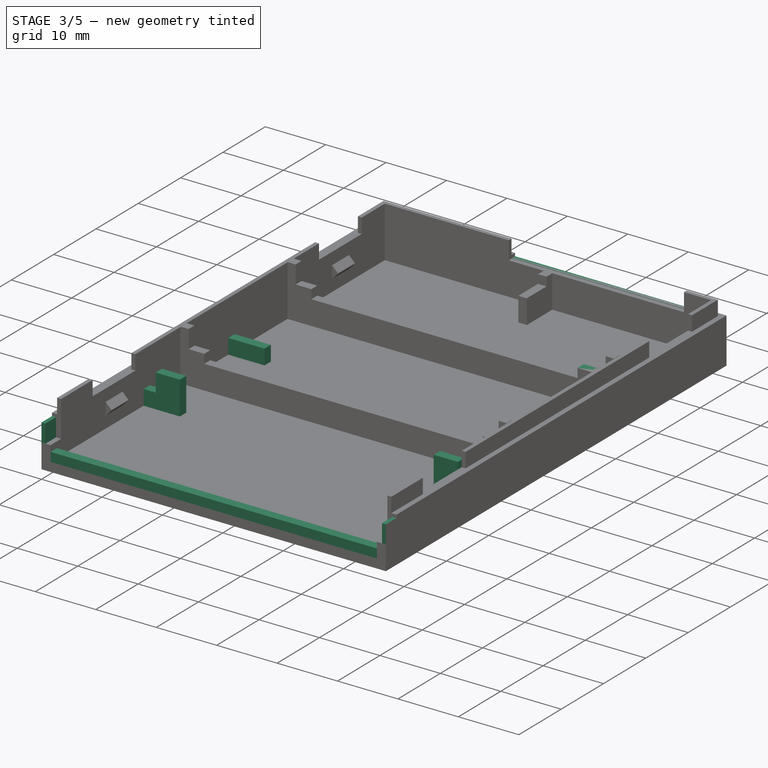
[diagram: stage 3 of 5 — iso view after this stage's code; geometry added in this stage tinted green]
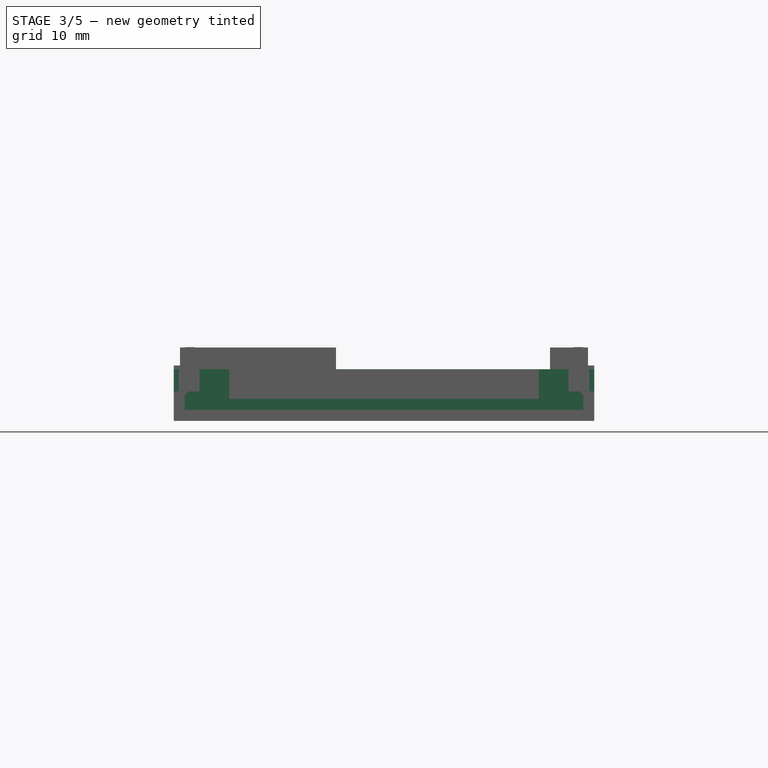
[diagram: stage 3 of 5 — front view after this stage's code; geometry added in this stage tinted green]
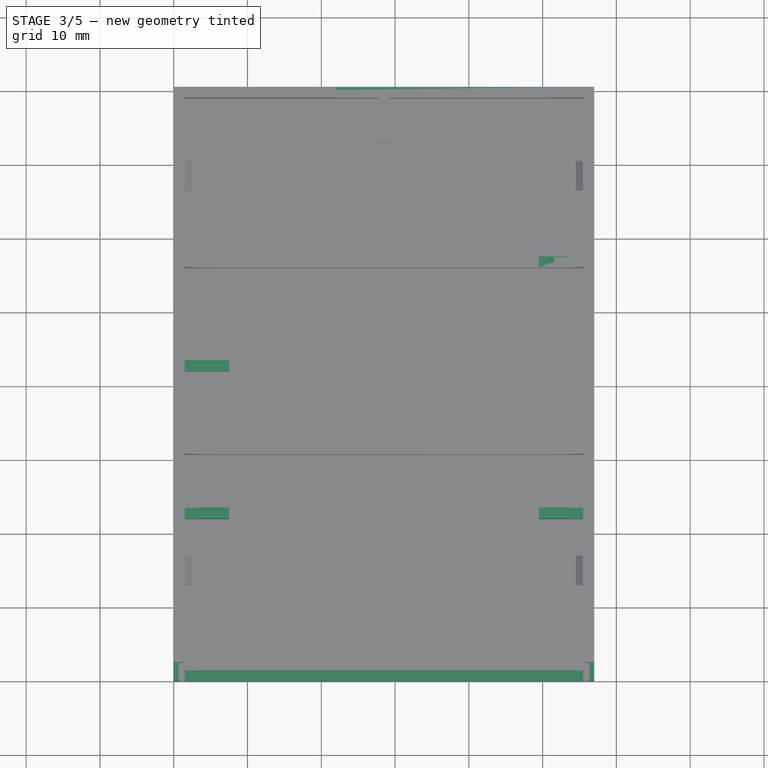
[diagram: stage 3 of 5 — top view after this stage's code; geometry added in this stage tinted green]
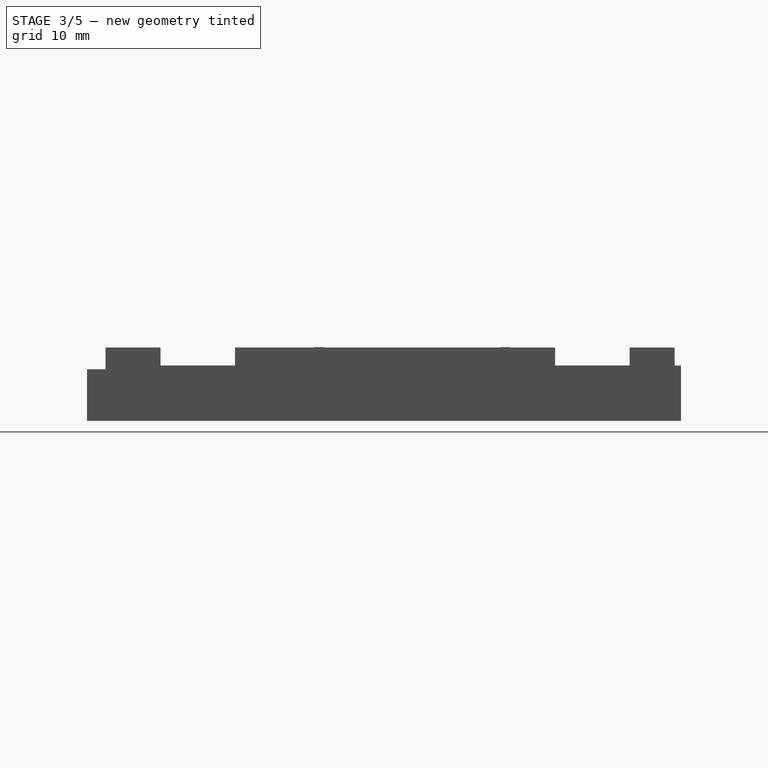
[diagram: stage 3 of 5 — right view after this stage's code; geometry added in this stage tinted green]
FEATURE [Sketcher::SketchObject] Sketch008  label="T_Upper_Edge_Sketch"
  ExternalGeometry = -> [Pad005]
  FullyConstrained = true
  MapMode = 5
  Placement = pos=(0,0,4) rot=(0,0,1;0rad)
  Support = -> [Pad005]
  expr: Constraints[18] = <<Main>>.T_Upper_Edge_Width - <<Main>>.T_Upper_Edge_Tolerance
  expr: Constraints[21] = <<Main>>.T_Upper_Edge_Width - <<Main>>.T_Upper_Edge_Tolerance
  sketch-geometry (8):
    g0: LineSegment StartX=0 StartY=0 StartZ=0 EndX=0 EndY=80.5 EndZ=0
    g1: LineSegment StartX=0 StartY=80.5 StartZ=0 EndX=57 EndY=80.5 EndZ=0
    g2: LineSegment StartX=57 StartY=80.5 StartZ=0 EndX=57 EndY=0 EndZ=0
    g3: LineSegment StartX=57 StartY=0 StartZ=0 EndX=56.35 EndY=0 EndZ=0
    g4: LineSegment StartX=56.35 StartY=0 StartZ=0 EndX=56.35 EndY=79.85 EndZ=0
    g5: LineSegment StartX=56.35 StartY=79.85 StartZ=0 EndX=0.65 EndY=79.85 EndZ=0
    g6: LineSegment StartX=0.65 StartY=79.85 StartZ=0 EndX=0.65 EndY=0 EndZ=0
    g7: LineSegment StartX=0 StartY=0 StartZ=0 EndX=0.65 EndY=0 EndZ=0
  constraints (22):
    c: Coincident(g0,g-1)
    c: Vertical(g0)
    c: Coincident(g1,g0)
    c: Coincident(g1,g-3)
    c: Horizontal(g1)
    c: Coincident(g2,g1)
    c: Vertical(g2)
    c: Coincident(g3,g2)
    c: Horizontal(g3)
    c: Coincident(g4,g3)
    c: Vertical(g4)
    c: Coincident(g5,g4)
    c: Horizontal(g5)
    c: Coincident(g6,g5)
    c: Vertical(g6)
    c: Coincident(g7,g0)
    c: Coincident(g7,g6)
    c: Horizontal(g7)
    c: DistanceX(g7,g7) = 0.65
    c: Equal(g7,g3)
    c: Horizontal(g3,g6)
    c: DistanceY(g4,g1) = 0.65
FEATURE [PartDesign::Pad] Pad006  label="T_Upper_Edge"
  BaseFeature = -> Pad005
  Direction = (0,0,1)
  Length = 3
  Length2 = 10
  Profile = -> Sketch008
  ReferenceAxis = -> Sketch008 [N_Axis]
  Type = 0
  expr: Length = <<Main>>.T_Upper_Edge_Thick
FEATURE [Spreadsheet::Sheet] Spreadsheet001  label="Log"
  cells = A1=Log - 20231126; B1=Looks like the top half fits; B2=sd cart would need hole cut in top + hole cut in back; B3=need "hold downs" - simple at first, just over the existing ones; B4=need a latching mechanism; A5=Log - 20231129; B5=Added hold downs; B6=Need to add TOP pins; B7=Need to add Bottom gaps for pins, thicker than originals; B8=Need to add Bottom latch; A9=Log - 20231202; B9=Cloned from base, Mods to do:; B10=1.) On top, remove front support, conflicts with C11 (right side in model, left side when installed); B11=2.) Cut hole in top for ROM ; B12=3.) Cut hole in top edge for SD card; B13=4.) Cut hole in bottom for sd card; B14=5.) Increase pcb holding spacing by .5 mm on each side
FEATURE [Sketcher::SketchObject] Sketch009  label="T_Lip_Sketch"
  ExternalGeometry = -> [Pad006]
  FullyConstrained = true
  MapMode = 5
  Placement = pos=(0,0,1.5) rot=(0,0,1;0rad)
  Support = -> [Pad006]
  expr: Constraints[9] = <<Main>>.T_Front_Lip_Width
  sketch-geometry (4):
    g0: LineSegment StartX=1.5 StartY=0 StartZ=0 EndX=55.5 EndY=0 EndZ=0
    g1: LineSegment StartX=55.5 StartY=0 StartZ=0 EndX=55.5 EndY=1.5 EndZ=0
    g2: LineSegment StartX=55.5 StartY=1.5 StartZ=0 EndX=1.5 EndY=1.5 EndZ=0
    g3: LineSegment StartX=1.5 StartY=1.5 StartZ=0 EndX=1.5 EndY=0 EndZ=0
  constraints (10):
    c: Coincident(g0,g-3)
    c: Coincident(g0,g-4)
    c: Coincident(g1,g0)
    c: Coincident(g2,g1)
    c: Horizontal(g2)
    c: Coincident(g3,g2)
    c: Coincident(g3,g0)
    c: Vertical(g3)
    c: Vertical(g1)
    c: DistanceY(g1,g1) = 1.5
FEATURE [PartDesign::Pad] Pad007  label="T_Lip"
  BaseFeature = -> Pad006
  Direction = (0,0,1)
  Length = 1.5
  Length2 = 10
  Profile = -> Sketch009
  ReferenceAxis = -> Sketch009 [N_Axis]
  Type = 0
  expr: Length = <<Main>>.T_Front_Lip_Thick
FEATURE [Sketcher::SketchObject] Sketch010  label="T_Forward_Holddown1_Sketch"
  ExternalGeometry = -> [Pad007]
  FullyConstrained = true
  MapMode = 5
  Placement = pos=(0,0,1.5) rot=(0,0,1;0rad)
  Support = -> [Pad007]
  expr: Constraints[10] = <<Main>>.T_Front_Holddown_Width
  expr: Constraints[11] = <<Main>>.T_Front_Holddown_Distance
  expr: Constraints[9] = <<Main>>.T_Front_Holddown_Height
  sketch-geometry (8):
    g0: LineSegment StartX=49.5 StartY=23.5 StartZ=0 EndX=55.5 EndY=23.5 EndZ=0
    g1: LineSegment StartX=55.5 StartY=23.5 StartZ=0 EndX=55.5 EndY=22 EndZ=0
    g2: LineSegment StartX=55.5 StartY=22 StartZ=0 EndX=49.5 EndY=22 EndZ=0
    g3: LineSegment StartX=49.5 StartY=22 StartZ=0 EndX=49.5 EndY=23.5 EndZ=0
    g4: LineSegment StartX=1.5 StartY=23.5 StartZ=0 EndX=7.5 EndY=23.5 EndZ=0
    g5: LineSegment StartX=7.5 StartY=23.5 StartZ=0 EndX=7.5 EndY=22 EndZ=0
    g6: LineSegment StartX=7.5 StartY=22 StartZ=0 EndX=1.5 EndY=22 EndZ=0
    g7: LineSegment StartX=1.5 StartY=22 StartZ=0 EndX=1.5 EndY=23.5 EndZ=0
  constraints (24):
    c: Coincident(g0,g1)
    c: Coincident(g1,g2)
    c: Coincident(g2,g3)
    c: Coincident(g3,g0)
    c: Horizontal(g0)
    c: Horizontal(g2)
    c: Vertical(g1)
    c: Vertical(g3)
    c: Vertical(g1,g-3)
    c: DistanceY(g3,g3) = 1.5
    c: DistanceX(g0,g0) = 6
    c: DistanceY(g-3,g1) = 22
    c: Coincident(g4,g5)
    c: Coincident(g5,g6)
    c: Coincident(g6,g7)
    c: Coincident(g7,g4)
    c: Horizontal(g4)
    c: Horizontal(g6)
    c: Vertical(g5)
    c: Vertical(g7)
    c: Vertical(g6,g-4)
    c: Horizontal(g5,g2)
    c: Horizontal(g0,g4)
    c: Equal(g4,g0)
FEATURE [PartDesign::Pad] Pad008  label="T_Forward_Holddown1"
  BaseFeature = -> Pad007
  Direction = (0,0,1)
  Length = 2.5
  Length2 = 10
  Profile = -> Sketch010
  ReferenceAxis = -> Sketch010 [N_Axis]
  Type = 0
  expr: Length = <<Main>>.T_Front_Holddown_Thick1
FEATURE [Sketcher::SketchObject] Sketch011  label="T_Rear_Holddown1_Sketch"
  ExternalGeometry = -> [Pad008]
  FullyConstrained = true
  MapMode = 5
  Placement = pos=(0,0,1.5) rot=(0,0,1;0rad)
  Support = -> [Pad008]
  expr: Constraints[10] = <<Main>>.T_Rear_Holddown_Distance
  expr: Constraints[8] = <<Main>>.T_Front_Holddown_Height
  expr: Constraints[9] = <<Main>>.T_Front_Holddown_Width
  sketch-geometry (4):
    g0: LineSegment StartX=49.5 StartY=57.5 StartZ=0 EndX=55.5 EndY=57.5 EndZ=0
    g1: LineSegment StartX=55.5 StartY=57.5 StartZ=0 EndX=55.5 EndY=56 EndZ=0
    g2: LineSegment StartX=55.5 StartY=56 StartZ=0 EndX=49.5 EndY=56 EndZ=0
    g3: LineSegment StartX=49.5 StartY=56 StartZ=0 EndX=49.5 EndY=57.5 EndZ=0
  constraints (12):
    c: Coincident(g0,g1)
    c: Coincident(g1,g2)
    c: Coincident(g2,g3)
    c: Coincident(g3,g0)
    c: Horizontal(g0)
    c: Horizontal(g2)
    c: Vertical(g1)
    c: Vertical(g3)
    c: DistanceY(g3,g3) = 1.5
    c: DistanceX(g0,g0) = 6
    c: DistanceY(g-3,g1) = 56
    c: Vertical(g1,g-3)
FEATURE [PartDesign::Pad] Pad009  label="T_Rear_Holddown1"
  BaseFeature = -> Pad008
  Direction = (0,0,1)
  Length = 2.5
  Length2 = 10
  Profile = -> Sketch011
  ReferenceAxis = -> Sketch011 [N_Axis]
  Type = 0
  expr: Length = <<Main>>.T_Front_Holddown_Thick1
FEATURE [Sketcher::SketchObject] Sketch012  label="T_Mid_Holddown1_Sketch"
  ExternalGeometry = -> [Pad009]
  FullyConstrained = true
  MapMode = 5
  Placement = pos=(0,0,1.5) rot=(0,0,1;0rad)
  Support = -> [Pad009]
  expr: Constraints[11] = <<Main>>.T_Mid_Holddown_Inner_Gap_From_Front
  expr: Constraints[8] = <<Main>>.T_Front_Holddown_Height
  expr: Constraints[9] = <<Main>>.T_Front_Holddown_Width
  sketch-geometry (4):
    g0: LineSegment StartX=1.5 StartY=43.5 StartZ=0 EndX=7.5 EndY=43.5 EndZ=0
    g1: LineSegment StartX=7.5 StartY=43.5 StartZ=0 EndX=7.5 EndY=42 EndZ=0
    g2: LineSegment StartX=7.5 StartY=42 StartZ=0 EndX=1.5 EndY=42 EndZ=0
    g3: LineSegment StartX=1.5 StartY=42 StartZ=0 EndX=1.5 EndY=43.5 EndZ=0
  constraints (12):
    c: Coincident(g0,g1)
    c: Coincident(g1,g2)
    c: Coincident(g2,g3)
    c: Coincident(g3,g0)
    c: Horizontal(g0)
    c: Horizontal(g2)
    c: Vertical(g1)
    c: Vertical(g3)
    c: DistanceY(g1,g1) = 1.5
    c: DistanceX(g0,g0) = 6
    c: Vertical(g2,g-3)
    c: DistanceY(g-4,g1) = 18.5
FEATURE [PartDesign::Pad] Pad010  label="T_Mid_Holddown1"
  BaseFeature = -> Pad009
  Direction = (0,0,1)
  Length = 2.5
  Length2 = 10
  Profile = -> Sketch012
  ReferenceAxis = -> Sketch012 [N_Axis]
  Type = 0
  expr: Length = <<Main>>.T_Front_Holddown_Thick1
FEATURE [PartDesign::Pad] Pad011  label="T_Forward_Holddown2L"
  BaseFeature = -> Pad010
  Direction = (0,0,1)
  Length = 3
  Length2 = 10
  Profile = -> Sketch013
  ReferenceAxis = -> Sketch013 [N_Axis]
  Type = 0
  expr: Length = <<Main>>.T_All_Holddown_Thick2
FEATURE [Sketcher::SketchObject] Sketch014  label="T_Forward_Holddown2R_Sketch"
  ExternalGeometry = -> [Pad011]
  FullyConstrained = true
  MapMode = 5
  Placement = pos=(0,0,4) rot=(0,0,1;0rad)
  Support = -> [Pad011]
  expr: Constraints[9] = <<Main>>.T_All_Holddown_Width
  sketch-geometry (4):
    g0: LineSegment StartX=49.5 StartY=23.5 StartZ=0 EndX=49.5 EndY=22 EndZ=0
    g1: LineSegment StartX=49.5 StartY=22 StartZ=0 EndX=53.5 EndY=22 EndZ=0
    g2: LineSegment StartX=49.5 StartY=23.5 StartZ=0 EndX=53.5 EndY=23.5 EndZ=0
    g3: LineSegment StartX=53.5 StartY=23.5 StartZ=0 EndX=53.5 EndY=22 EndZ=0
  constraints (10):
    c: Coincident(g0,g-3)
    c: Coincident(g0,g-4)
    c: Coincident(g1,g0)
    c: Horizontal(g1)
    c: Coincident(g2,g0)
    c: Horizontal(g2)
    c: Coincident(g3,g2)
    c: Coincident(g3,g1)
    c: Vertical(g3)
    c: DistanceX(g2,g2) = 4
FEATURE [PartDesign::Pad] Pad012  label="T_Forward_Holddown2R"
  BaseFeature = -> Pad011
  Direction = (0,0,1)
  Length = 3
  Length2 = 10
  Profile = -> Sketch014
  ReferenceAxis = -> Sketch014 [N_Axis]
  Type = 0
  expr: Length = <<Main>>.T_All_Holddown_Thick2
FEATURE [Sketcher::SketchObject] Sketch015  label="T_Rear_Holddown2_Sketch"
  ExternalGeometry = -> [Pad012]
  FullyConstrained = true
  MapMode = 5
  Placement = pos=(0,0,4) rot=(0,0,1;0rad)
  Support = -> [Pad012]
  expr: Constraints[9] = <<Main>>.T_All_Holddown_Width
  sketch-geometry (4):
    g0: LineSegment StartX=49.5 StartY=57.5 StartZ=0 EndX=49.5 EndY=56 EndZ=0
    g1: LineSegment StartX=49.5 StartY=56 StartZ=0 EndX=53.5 EndY=56 EndZ=0
    g2: LineSegment StartX=49.5 StartY=57.5 StartZ=0 EndX=53.5 EndY=57.5 EndZ=0
    g3: LineSegment StartX=53.5 StartY=57.5 StartZ=0 EndX=53.5 EndY=56 EndZ=0
  constraints (10):
    c: Coincident(g0,g-3)
    c: Coincident(g0,g-4)
    c: Coincident(g1,g0)
    c: Horizontal(g1)
    c: Coincident(g2,g0)
    c: Horizontal(g2)
    c: Coincident(g3,g2)
    c: Coincident(g3,g1)
    c: Vertical(g3)
    c: DistanceX(g2,g2) = 4
FEATURE [PartDesign::Pad] Pad013  label="T_Rear_Holddown2"
  BaseFeature = -> Pad012
  Direction = (0,0,1)
  Length = 3
  Length2 = 10
  Profile = -> Sketch015
  ReferenceAxis = -> Sketch015 [N_Axis]
  Type = 0
  expr: Length = <<Main>>.T_All_Holddown_Thick2
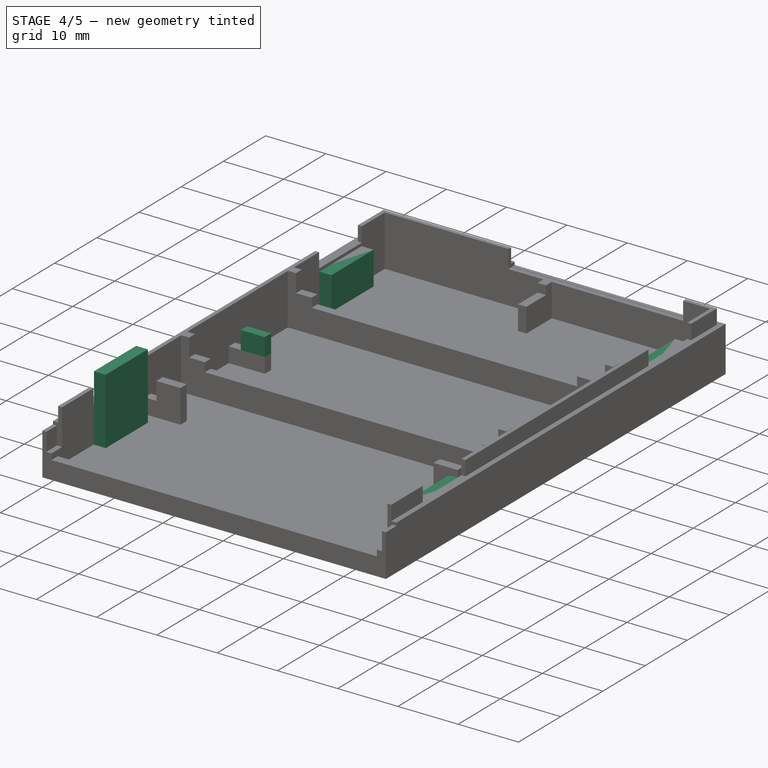
[diagram: stage 4 of 5 — iso view after this stage's code; geometry added in this stage tinted green]
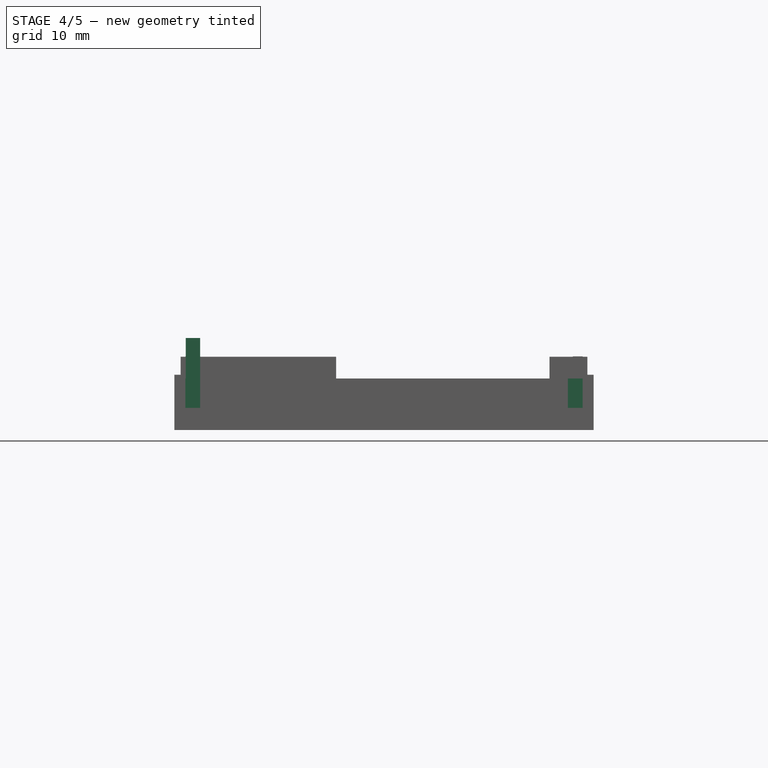
[diagram: stage 4 of 5 — front view after this stage's code; geometry added in this stage tinted green]
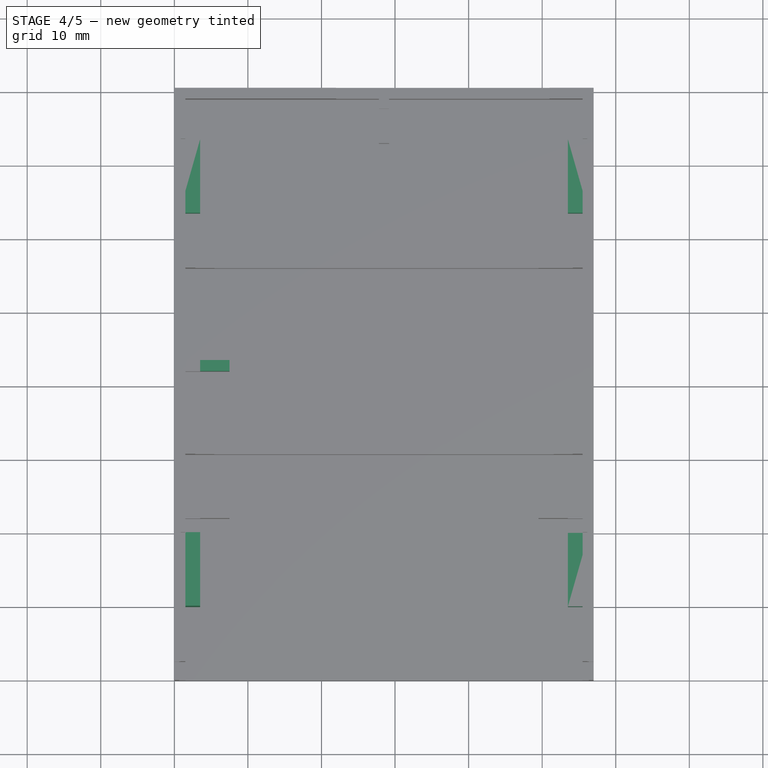
[diagram: stage 4 of 5 — top view after this stage's code; geometry added in this stage tinted green]
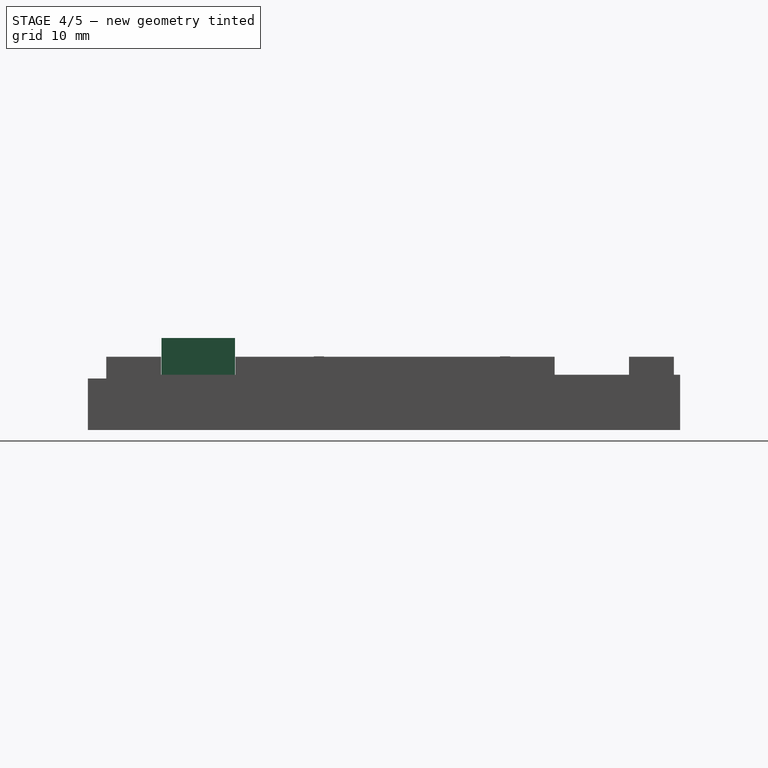
[diagram: stage 4 of 5 — right view after this stage's code; geometry added in this stage tinted green]
FEATURE [Sketcher::SketchObject] Sketch016  label="T_Mid_Holddown2_Sketch"
  ExternalGeometry = -> [Pad013]
  FullyConstrained = true
  MapMode = 5
  Placement = pos=(0,0,4) rot=(0,0,1;0rad)
  Support = -> [Pad013]
  expr: Constraints[9] = <<Main>>.T_All_Holddown_Width
  sketch-geometry (4):
    g0: LineSegment StartX=7.5 StartY=43.5 StartZ=0 EndX=7.5 EndY=42 EndZ=0
    g1: LineSegment StartX=7.5 StartY=42 StartZ=0 EndX=3.5 EndY=42 EndZ=0
    g2: LineSegment StartX=7.5 StartY=43.5 StartZ=0 EndX=3.5 EndY=43.5 EndZ=0
    g3: LineSegment StartX=3.5 StartY=43.5 StartZ=0 EndX=3.5 EndY=42 EndZ=0
  constraints (10):
    c: Coincident(g0,g-3)
    c: Coincident(g0,g-4)
    c: Coincident(g1,g0)
    c: Horizontal(g1)
    c: Coincident(g2,g0)
    c: Horizontal(g2)
    c: Coincident(g3,g2)
    c: Coincident(g3,g1)
    c: Vertical(g3)
    c: DistanceX(g2,g2) = 4
FEATURE [PartDesign::Pad] Pad014  label="T_Mid_Holddown2"
  BaseFeature = -> Pad013
  Direction = (0,0,1)
  Length = 3
  Length2 = 10
  Profile = -> Sketch016
  ReferenceAxis = -> Sketch016 [N_Axis]
  Type = 0
  expr: Length = <<Main>>.T_All_Holddown_Thick2
FEATURE [Sketcher::SketchObject] Sketch017  label="T_Pin_Base_Sketch"
  ExternalGeometry = -> [Pad014]
  FullyConstrained = true
  MapMode = 5
  Placement = pos=(0,0,1.5) rot=(0,0,1;0rad)
  Support = -> [Pad014]
  expr: Constraints[32] = <<Main>>.T_Pin_Base_Width
  expr: Constraints[33] = <<Main>>.T_Pin_Base_Height
  expr: Constraints[34] = <<Main>>.T_Pin_Front_Distance
  expr: Constraints[42] = <<Main>>.T_Pin_Gap_Distance
  sketch-geometry (16):
    g0: LineSegment StartX=1.5 StartY=20 StartZ=0 EndX=3.5 EndY=20 EndZ=0
    g1: LineSegment StartX=3.5 StartY=20 StartZ=0 EndX=3.5 EndY=10 EndZ=0
    g2: LineSegment StartX=3.5 StartY=10 StartZ=0 EndX=1.5 EndY=10 EndZ=0
    g3: LineSegment StartX=1.5 StartY=10 StartZ=0 EndX=1.5 EndY=20 EndZ=0
    g4: LineSegment StartX=53.5 StartY=20 StartZ=0 EndX=55.5 EndY=20 EndZ=0
    g5: LineSegment StartX=55.5 StartY=20 StartZ=0 EndX=55.5 EndY=10 EndZ=0
    g6: LineSegment StartX=55.5 StartY=10 StartZ=0 EndX=53.5 EndY=10 EndZ=0
    g7: LineSegment StartX=53.5 StartY=10 StartZ=0 EndX=53.5 EndY=20 EndZ=0
    g8: LineSegment StartX=1.5 StartY=73.5 StartZ=0 EndX=3.5 EndY=73.5 EndZ=0
    g9: LineSegment StartX=3.5 StartY=73.5 StartZ=0 EndX=3.5 EndY=63.5 EndZ=0
    g10: LineSegment StartX=3.5 StartY=63.5 StartZ=0 EndX=1.5 EndY=63.5 EndZ=0
    g11: LineSegment StartX=1.5 StartY=63.5 StartZ=0 EndX=1.5 EndY=73.5 EndZ=0
    g12: LineSegment StartX=53.5 StartY=73.5 StartZ=0 EndX=55.5 EndY=73.5 EndZ=0
    g13: LineSegment StartX=55.5 StartY=73.5 StartZ=0 EndX=55.5 EndY=63.5 EndZ=0
    g14: LineSegment StartX=55.5 StartY=63.5 StartZ=0 EndX=53.5 EndY=63.5 EndZ=0
    g15: LineSegment StartX=53.5 StartY=63.5 StartZ=0 EndX=53.5 EndY=73.5 EndZ=0
  constraints (48):
    c: Coincident(g0,g1)
    c: Coincident(g1,g2)
    c: Coincident(g2,g3)
    c: Coincident(g3,g0)
    c: Horizontal(g0)
    c: Horizontal(g2)
    c: Vertical(g1)
    c: Vertical(g3)
    c: Coincident(g4,g5)
    c: Coincident(g5,g6)
    c: Coincident(g6,g7)
    c: Coincident(g7,g4)
    c: Horizontal(g4)
    c: Horizontal(g6)
    c: Vertical(g5)
    c: Vertical(g7)
    c: Coincident(g8,g9)
    c: Coincident(g9,g10)
    c: Coincident(g10,g11)
    c: Coincident(g11,g8)
    c: Horizontal(g8)
    c: Horizontal(g10)
    c: Vertical(g9)
    c: Vertical(g11)
    c: Coincident(g12,g13)
    c: Coincident(g13,g14)
    c: Coincident(g14,g15)
    c: Coincident(g15,g12)
    c: Horizontal(g12)
    c: Horizontal(g14)
    c: Vertical(g13)
    c: Vertical(g15)
    c: DistanceX(g2,g2) = 2
    c: DistanceY(g1,g1) = 10
    c: DistanceY(g-3,g2) = 10
    c: Vertical(g-3,g2)
    c: Equal(g7,g1)
    c: Equal(g4,g0)
    c: Horizontal(g6,g1)
    c: Vertical(g5,g-4)
    c: Equal(g10,g0)
    c: Equal(g9,g1)
    c: DistanceY(g0,g10) = 43.5
    c: Vertical(g10,g2)
    c: Equal(g12,g8)
    c: Equal(g15,g1)
    c: Horizontal(g12,g8)
    c: Vertical(g13,g-4)
FEATURE [PartDesign::Pad] Pad015  label="T_Pin_Base"
  BaseFeature = -> Pad014
  Direction = (0,0,1)
  Length = 2.5
  Length2 = 10
  Profile = -> Sketch017
  ReferenceAxis = -> Sketch017 [N_Axis]
  Type = 0
  expr: Length = <<Main>>.T_Lower_Edge_Thick
FEATURE [Sketcher::SketchObject] Sketch018  label="T_Pin_Mid_FL_Sketch"
  ExternalGeometry = -> [Pad015]
  FullyConstrained = true
  MapMode = 5
  Placement = pos=(0,0,4) rot=(0,0,1;0rad)
  Support = -> [Pad015]
  sketch-geometry (4):
    g0: LineSegment StartX=3.5 StartY=20 StartZ=0 EndX=3.5 EndY=10 EndZ=0
    g1: LineSegment StartX=3.5 StartY=20 StartZ=0 EndX=0.65 EndY=20 EndZ=0
    g2: LineSegment StartX=3.5 StartY=10 StartZ=0 EndX=0.65 EndY=10 EndZ=0
    g3: LineSegment StartX=0.65 StartY=20 StartZ=0 EndX=0.65 EndY=10 EndZ=0
  constraints (10):
    c: Coincident(g0,g-4)
    c: Coincident(g0,g-5)
    c: Coincident(g1,g0)
    c: Horizontal(g1)
    c: Coincident(g2,g0)
    c: Coincident(g3,g1)
    c: Coincident(g3,g2)
    c: Vertical(g3)
    c: Horizontal(g2)
    c: Vertical(g2,g-3)
FEATURE [PartDesign::Pad] Pad016  label="T_Pin_Mid_FL"
  BaseFeature = -> Pad015
  Direction = (0,0,1)
  Length = 3
  Length2 = 10
  Profile = -> Sketch018
  ReferenceAxis = -> Sketch018 [N_Axis]
  Type = 0
  expr: Length = <<Main>>.T_Upper_Edge_Thick
FEATURE [Sketcher::SketchObject] Sketch019  label="T_Pin_Mid_FR_Sketch"
  ExternalGeometry = -> [Pad016]
  FullyConstrained = true
  MapMode = 5
  Placement = pos=(0,0,4) rot=(0,0,1;0rad)
  Support = -> [Pad016]
  sketch-geometry (4):
    g0: LineSegment StartX=53.5 StartY=20 StartZ=0 EndX=56.35 EndY=20 EndZ=0
    g1: LineSegment StartX=56.35 StartY=20 StartZ=0 EndX=56.35 EndY=10 EndZ=0
    g2: LineSegment StartX=56.35 StartY=10 StartZ=0 EndX=53.5 EndY=10 EndZ=0
    g3: LineSegment StartX=53.5 StartY=20 StartZ=0 EndX=53.5 EndY=10 EndZ=0
  constraints (10):
    c: Coincident(g0,g1)
    c: Coincident(g1,g2)
    c: Horizontal(g0)
    c: Horizontal(g2)
    c: Vertical(g1)
    c: Coincident(g0,g-3)
    c: Coincident(g2,g-4)
    c: Coincident(g3,g0)
    c: Coincident(g3,g2)
    c: Vertical(g1,g-5)
FEATURE [PartDesign::Pad] Pad017  label="T_Pin_Mid_FR"
  BaseFeature = -> Pad016
  Direction = (0,0,1)
  Length = 3
  Length2 = 10
  Profile = -> Sketch019
  ReferenceAxis = -> Sketch019 [N_Axis]
  Type = 0
  expr: Length = <<Main>>.T_Upper_Edge_Thick
FEATURE [Sketcher::SketchObject] Sketch020  label="T_Pin_Mid_BL_Sketch"
  ExternalGeometry = -> [Pad017]
  FullyConstrained = true
  MapMode = 5
  Placement = pos=(0,0,4) rot=(0,0,1;0rad)
  Support = -> [Pad017]
  sketch-geometry (4):
    g0: LineSegment StartX=0.65 StartY=73.5 StartZ=0 EndX=3.5 EndY=73.5 EndZ=0
    g1: LineSegment StartX=3.5 StartY=63.5 StartZ=0 EndX=0.65 EndY=63.5 EndZ=0
    g2: LineSegment StartX=0.65 StartY=63.5 StartZ=0 EndX=0.65 EndY=73.5 EndZ=0
    g3: LineSegment StartX=3.5 StartY=73.5 StartZ=0 EndX=3.5 EndY=63.5 EndZ=0
  constraints (10):
    c: Coincident(g1,g2)
    c: Coincident(g2,g0)
    c: Horizontal(g0)
    c: Horizontal(g1)
    c: Vertical(g2)
    c: Coincident(g0,g-3)
    c: Coincident(g1,g-4)
    c: Coincident(g3,g0)
    c: Coincident(g3,g1)
    c: Vertical(g1,g-5)
FEATURE [PartDesign::Pad] Pad018  label="T_Pin_Mid_BL"
  BaseFeature = -> Pad017
  Direction = (0,0,1)
  Length = 3
  Length2 = 10
  Profile = -> Sketch020
  ReferenceAxis = -> Sketch020 [N_Axis]
  Type = 0
  expr: Length = <<Main>>.T_Upper_Edge_Thick
FEATURE [Sketcher::SketchObject] Sketch021  label="T_Pin_Mid_BR_Sketch"
  ExternalGeometry = -> [Pad018]
  FullyConstrained = true
  MapMode = 5
  Placement = pos=(0,0,4) rot=(0,0,1;0rad)
  Support = -> [Pad018]
  sketch-geometry (4):
    g0: LineSegment StartX=53.5 StartY=73.5 StartZ=0 EndX=56.35 EndY=73.5 EndZ=0
    g1: LineSegment StartX=56.35 StartY=73.5 StartZ=0 EndX=56.35 EndY=63.5 EndZ=0
    g2: LineSegment StartX=56.35 StartY=63.5 StartZ=0 EndX=53.5 EndY=63.5 EndZ=0
    g3: LineSegment StartX=53.5 StartY=73.5 StartZ=0 EndX=53.5 EndY=63.5 EndZ=0
  constraints (10):
    c: Coincident(g0,g1)
    c: Coincident(g1,g2)
    c: Horizontal(g0)
    c: Horizontal(g2)
    c: Vertical(g1)
    c: Coincident(g3,g-3)
    c: Coincident(g3,g-4)
    c: Coincident(g2,g3)
    c: Coincident(g0,g3)
    c: Vertical(g1,g-5)
FEATURE [PartDesign::Pad] Pad019  label="T_Pin_Mid_BR"
  BaseFeature = -> Pad018
  Direction = (0,0,1)
  Length = 3
  Length2 = 10
  Profile = -> Sketch021
  ReferenceAxis = -> Sketch021 [N_Axis]
  Type = 0
  expr: Length = <<Main>>.T_Upper_Edge_Thick
FEATURE [Sketcher::SketchObject] Sketch022  label="T_Pin_Upper_FL_Sketch"
  ExternalGeometry = -> [Pad019]
  FullyConstrained = true
  MapMode = 5
  Placement = pos=(0,0,7) rot=(0,0,1;0rad)
  Support = -> [Pad019]
  expr: Constraints[9] = <<Main>>.B_Middle_Edge_Tolerance
  sketch-geometry (4):
    g0: LineSegment StartX=1.55 StartY=20 StartZ=0 EndX=3.5 EndY=20 EndZ=0
    g1: LineSegment StartX=3.5 StartY=10 StartZ=0 EndX=1.55 EndY=10 EndZ=0
    g2: LineSegment StartX=1.55 StartY=10 StartZ=0 EndX=1.55 EndY=20 EndZ=0
    g3: LineSegment StartX=3.5 StartY=20 StartZ=0 EndX=3.5 EndY=10 EndZ=0
  constraints (10):
    c: Coincident(g1,g2)
    c: Coincident(g2,g0)
    c: Horizontal(g0)
    c: Horizontal(g1)
    c: Vertical(g2)
    c: Coincident(g3,g-3)
    c: Coincident(g3,g-4)
    c: Coincident(g0,g3)
    c: Coincident(g1,g3)
    c: DistanceX(g-5,g1) = 0.05
FEATURE [PartDesign::Pad] Pad020  label="T_Pin_Upper_FL"
  BaseFeature = -> Pad019
  Direction = (0,0,1)
  Length = 5.5
  Length2 = 10
  Profile = -> Sketch022
  ReferenceAxis = -> Sketch022 [N_Axis]
  Type = 0
  expr: Length = <<Main>>.T_Pin_Upper_Thick
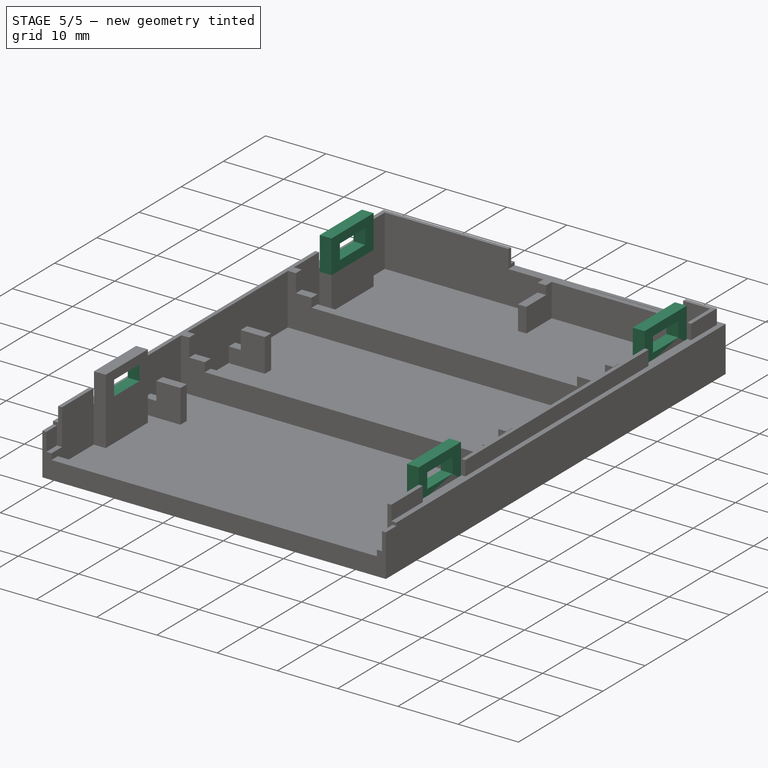
[diagram: stage 5 of 5 — iso view after this stage's code; geometry added in this stage tinted green]
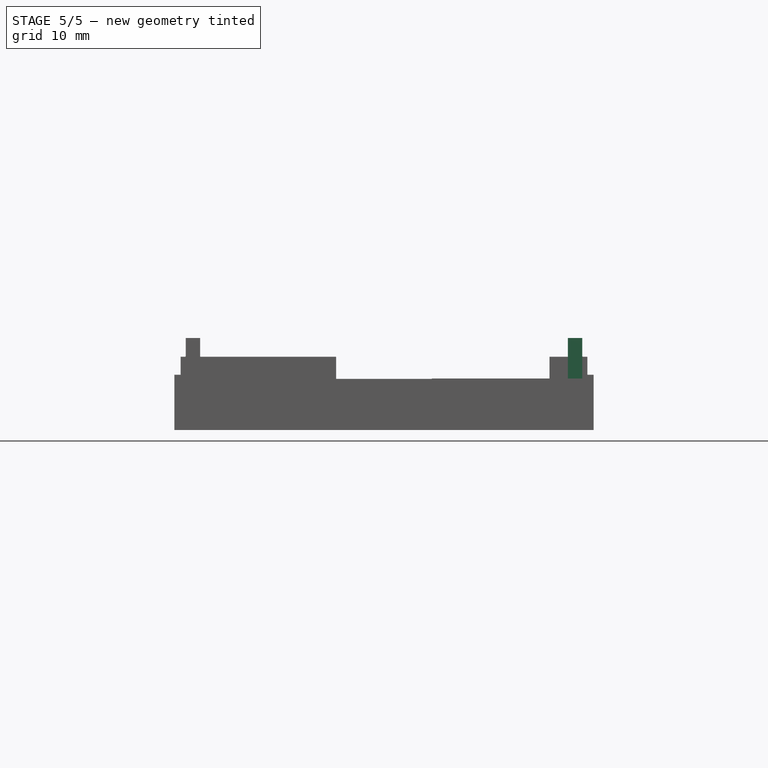
[diagram: stage 5 of 5 — front view after this stage's code; geometry added in this stage tinted green]
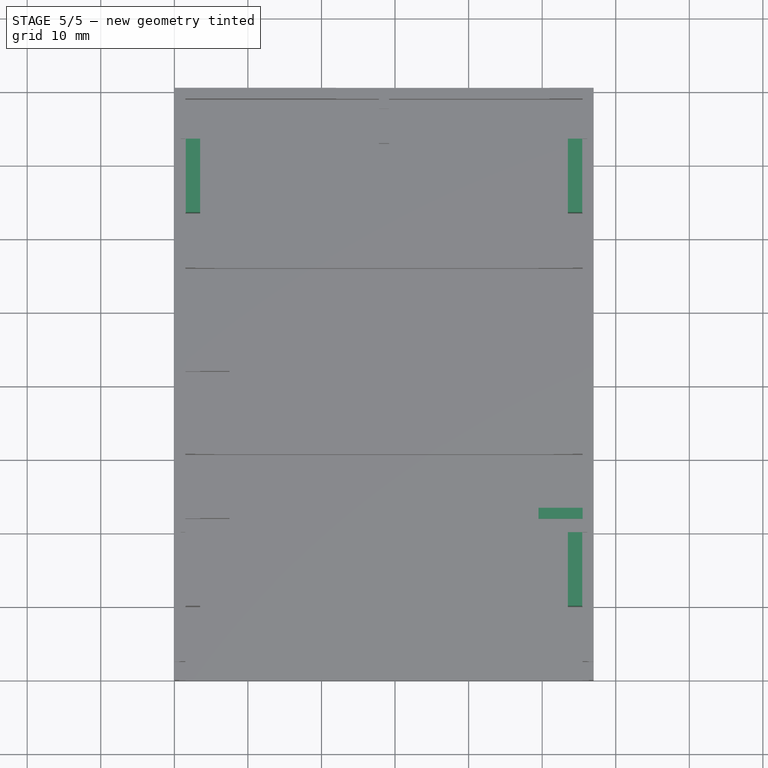
[diagram: stage 5 of 5 — top view after this stage's code; geometry added in this stage tinted green]
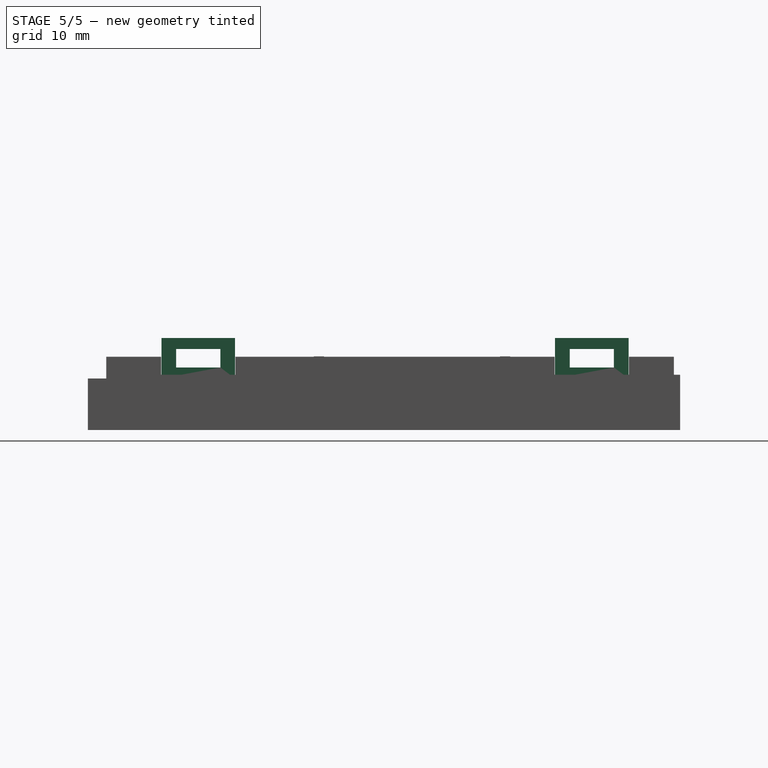
[diagram: stage 5 of 5 — right view after this stage's code; geometry added in this stage tinted green]
FEATURE [Sketcher::SketchObject] Sketch023  label="T_Pin_Upper_FR_Sketch"
  ExternalGeometry = -> [Pad020]
  FullyConstrained = true
  MapMode = 5
  Placement = pos=(0,0,7) rot=(0,0,1;0rad)
  Support = -> [Pad020]
  expr: Constraints[9] = <<Main>>.B_Middle_Edge_Tolerance
  sketch-geometry (4):
    g0: LineSegment StartX=53.5 StartY=20 StartZ=0 EndX=53.5 EndY=10 EndZ=0
    g1: LineSegment StartX=53.5 StartY=20 StartZ=0 EndX=55.45 EndY=20 EndZ=0
    g2: LineSegment StartX=55.45 StartY=20 StartZ=0 EndX=55.45 EndY=10 EndZ=0
    g3: LineSegment StartX=55.45 StartY=10 StartZ=0 EndX=53.5 EndY=10 EndZ=0
  constraints (10):
    c: Coincident(g0,g-3)
    c: Coincident(g0,g-4)
    c: Coincident(g1,g2)
    c: Coincident(g2,g3)
    c: Horizontal(g1)
    c: Horizontal(g3)
    c: Vertical(g2)
    c: Coincident(g3,g0)
    c: Coincident(g1,g0)
    c: DistanceX(g2,g-5) = 0.05
FEATURE [PartDesign::Pad] Pad021  label="T_Pin_Upper_FR"
  BaseFeature = -> Pad020
  Direction = (0,0,1)
  Length = 5.5
  Length2 = 10
  Profile = -> Sketch023
  ReferenceAxis = -> Sketch023 [N_Axis]
  Type = 0
  expr: Length = <<Main>>.T_Pin_Upper_Thick
FEATURE [Sketcher::SketchObject] Sketch024  label="T_Pin_Upper_BL_Sketch"
  ExternalGeometry = -> [Pad021]
  FullyConstrained = true
  MapMode = 5
  Placement = pos=(0,0,7) rot=(0,0,1;0rad)
  Support = -> [Pad021]
  expr: Constraints[9] = <<Main>>.B_Middle_Edge_Tolerance
  sketch-geometry (4):
    g0: LineSegment StartX=3.5 StartY=73.5 StartZ=0 EndX=3.5 EndY=63.5 EndZ=0
    g1: LineSegment StartX=1.55 StartY=73.5 StartZ=0 EndX=3.5 EndY=73.5 EndZ=0
    g2: LineSegment StartX=3.5 StartY=63.5 StartZ=0 EndX=1.55 EndY=63.5 EndZ=0
    g3: LineSegment StartX=1.55 StartY=63.5 StartZ=0 EndX=1.55 EndY=73.5 EndZ=0
  constraints (10):
    c: Coincident(g0,g-3)
    c: Coincident(g0,g-4)
    c: Coincident(g2,g3)
    c: Coincident(g3,g1)
    c: Horizontal(g1)
    c: Horizontal(g2)
    c: Vertical(g3)
    c: Coincident(g2,g0)
    c: Coincident(g1,g0)
    c: DistanceX(g-5,g2) = 0.05
FEATURE [PartDesign::Pad] Pad022  label="T_Pin_Upper_BL"
  BaseFeature = -> Pad021
  Direction = (0,0,1)
  Length = 5.5
  Length2 = 10
  Profile = -> Sketch024
  ReferenceAxis = -> Sketch024 [N_Axis]
  Type = 0
  expr: Length = <<Main>>.T_Pin_Upper_Thick
FEATURE [Sketcher::SketchObject] Sketch025  label="T_Pin_Upper_BR_Sketch"
  ExternalGeometry = -> [Pad022]
  FullyConstrained = true
  MapMode = 5
  Placement = pos=(0,0,7) rot=(0,0,1;0rad)
  Support = -> [Pad022]
  expr: Constraints[9] = <<Main>>.B_Middle_Edge_Tolerance
  sketch-geometry (4):
    g0: LineSegment StartX=53.5 StartY=73.5 StartZ=0 EndX=55.45 EndY=73.5 EndZ=0
    g1: LineSegment StartX=55.45 StartY=73.5 StartZ=0 EndX=55.45 EndY=63.5 EndZ=0
    g2: LineSegment StartX=55.45 StartY=63.5 StartZ=0 EndX=53.5 EndY=63.5 EndZ=0
    g3: LineSegment StartX=53.5 StartY=73.5 StartZ=0 EndX=53.5 EndY=63.5 EndZ=0
  constraints (10):
    c: Coincident(g0,g1)
    c: Coincident(g1,g2)
    c: Horizontal(g0)
    c: Horizontal(g2)
    c: Vertical(g1)
    c: Coincident(g3,g-3)
    c: Coincident(g3,g-4)
    c: Coincident(g2,g3)
    c: Coincident(g0,g3)
    c: DistanceX(g1,g-5) = 0.05
FEATURE [PartDesign::Pad] Pad023  label="T_Pin_Upper_BR"
  BaseFeature = -> Pad022
  Direction = (0,0,1)
  Length = 5.5
  Length2 = 10
  Profile = -> Sketch025
  ReferenceAxis = -> Sketch025 [N_Axis]
  Type = 0
  expr: Length = <<Main>>.T_Pin_Upper_Thick
FEATURE [Sketcher::SketchObject] Sketch026  label="T_Pin_Hole_Sketch"
  ExternalGeometry = -> [Pad023]
  FullyConstrained = true
  MapMode = 5
  Placement = pos=(55.45,0,0) rot=(0.57735,0.57735,0.57735;2.0944rad)
  Support = -> [Pad023]
  expr: Constraints[10] = <<Main>>.T_Pin_Upper_Bezel
  expr: Constraints[11] = <<Main>>.T_Pin_Upper_Bezel_Horizontal
  expr: Constraints[20] = <<Main>>.T_Pin_Upper_Bezel_Horizontal
  expr: Constraints[23] = <<Main>>.T_Pin_Upper_Bezel_Horizontal
  expr: Constraints[8] = <<Main>>.T_Pin_Upper_Bezel_Horizontal
  expr: Constraints[9] = <<Main>>.T_Pin_Upper_Bezel
  sketch-geometry (8):
    g0: LineSegment StartX=12 StartY=11 StartZ=0 EndX=18 EndY=11 EndZ=0
    g1: LineSegment StartX=18 StartY=11 StartZ=0 EndX=18 EndY=8.5 EndZ=0
    g2: LineSegment StartX=18 StartY=8.5 StartZ=0 EndX=12 EndY=8.5 EndZ=0
    g3: LineSegment StartX=12 StartY=8.5 StartZ=0 EndX=12 EndY=11 EndZ=0
    g4: LineSegment StartX=65.5 StartY=11 StartZ=0 EndX=71.5 EndY=11 EndZ=0
    g5: LineSegment StartX=71.5 StartY=11 StartZ=0 EndX=71.5 EndY=8.5 EndZ=0
    g6: LineSegment StartX=71.5 StartY=8.5 StartZ=0 EndX=65.5 EndY=8.5 EndZ=0
    g7: LineSegment StartX=65.5 StartY=8.5 StartZ=0 EndX=65.5 EndY=11 EndZ=0
  constraints (24):
    c: Coincident(g0,g1)
    c: Coincident(g1,g2)
    c: Coincident(g2,g3)
    c: Coincident(g3,g0)
    c: Horizontal(g0)
    c: Horizontal(g2)
    c: Vertical(g1)
    c: Vertical(g3)
    c: DistanceX(g-3,g0) = 2
    c: DistanceY(g0,g-3) = 1.5
    c: DistanceY(g-4,g2) = 1.5
    c: DistanceX(g0,g-5) = 2
    c: Coincident(g4,g5)
    c: Coincident(g5,g6)
    c: Coincident(g6,g7)
    c: Coincident(g7,g4)
    c: Horizontal(g4)
    c: Horizontal(g6)
    c: Vertical(g5)
    c: Vertical(g7)
    c: DistanceX(g4,g-6) = 2
    c: Horizontal(g4,g0)
    c: Horizontal(g6,g1)
    c: DistanceX(g-7,g4) = 2
FEATURE [PartDesign::Pocket] Pocket002  label="T_Pin_Hole"
  BaseFeature = -> Pad023
  Direction = (-1,0,0)
  Length = 5
  Length2 = 5
  Profile = -> Sketch026
  ReferenceAxis = -> Sketch026 [N_Axis]
  Type = 1
FEATURE [Sketcher::SketchObject] Sketch031  label="T_Omit_Forward_Holddown_Sketch"
  ExternalGeometry = -> [Pocket002]
  FullyConstrained = true
  MapMode = 5
  Placement = pos=(0,0,7) rot=(0,0,1;0rad)
  Support = -> [Pocket002]
  sketch-geometry (4):
    g0: LineSegment StartX=49.5 StartY=23.5 StartZ=0 EndX=55.5 EndY=23.5 EndZ=0
    g1: LineSegment StartX=55.5 StartY=23.5 StartZ=0 EndX=55.5 EndY=22 EndZ=0
    g2: LineSegment StartX=55.5 StartY=22 StartZ=0 EndX=49.5 EndY=22 EndZ=0
    g3: LineSegment StartX=49.5 StartY=22 StartZ=0 EndX=49.5 EndY=23.5 EndZ=0
  constraints (10):
    c: Coincident(g0,g1)
    c: Coincident(g1,g2)
    c: Coincident(g2,g3)
    c: Coincident(g3,g0)
    c: Horizontal(g0)
    c: Horizontal(g2)
    c: Vertical(g1)
    c: Vertical(g3)
    c: Coincident(g0,g-3)
    c: Coincident(g1,g-4)
FEATURE [PartDesign::Pocket] Pocket005  label="T_Omit_Forward_Holddown"
  BaseFeature = -> Pocket002
  Direction = (0,0,-1)
  Length = 5
  Length2 = 5
  Profile = -> Sketch031
  ReferenceAxis = -> Sketch031 [N_Axis]
  Type = 0
FEATURE [Sketcher::SketchObject] Sketch032  label="T_ROM_Hole_Sketch"
  ExternalGeometry = -> [Pocket005]
  FullyConstrained = true
  MapMode = 5
  Placement = pos=(0,0,1.5) rot=(0,0,1;0rad)
  Support = -> [Pocket005]
  sketch-geometry (6):
    g0: LineSegment StartX=8 StartY=32 StartZ=0 EndX=49 EndY=32 EndZ=0
    g1: LineSegment StartX=49 StartY=32 StartZ=0 EndX=49 EndY=10 EndZ=0
    g2: LineSegment StartX=49 StartY=10 StartZ=0 EndX=8 EndY=10 EndZ=0
    g3: LineSegment StartX=8 StartY=10 StartZ=0 EndX=8 EndY=32 EndZ=0
    g4: GeomPoint X=28.5 Y=10 Z=0
    g5: GeomPoint X=28.5 Y=0 Z=0
  constraints (14):
    c: Coincident(g0,g1)
    c: Coincident(g1,g2)
    c: Coincident(g2,g3)
    c: Coincident(g3,g0)
    c: Horizontal(g0)
    c: Horizontal(g2)
    c: Vertical(g1)
    c: Vertical(g3)
    c: Symmetric(g2,g1,g4)
    c: Symmetric(g-1,g-3,g5)
    c: Vertical(g5,g4)
    c: DistanceY(g5,g4) = 10
    c: DistanceY(g3,g3) = 22
    c: DistanceX(g-1,g2) = 8
FEATURE [PartDesign::Pocket] Pocket006  label="T_ROM_Hole"
  BaseFeature = -> Pocket005
  Direction = (0,0,-1)
  Length = 5
  Length2 = 5
  Profile = -> Sketch032
  ReferenceAxis = -> Sketch032 [N_Axis]
  Type = 2
FEATURE [Sketcher::SketchObject] Sketch033  label="T_SD_Hole_Sketch"
  ExternalGeometry = -> [Pocket006]
  FullyConstrained = true
  MapMode = 5
  Placement = pos=(0,80.5,0) rot=(0,0.707107,0.707107;3.14159rad)
  Support = -> [Pocket006]
  sketch-geometry (4):
    g0: LineSegment StartX=-35 StartY=7 StartZ=0 EndX=-6 EndY=7 EndZ=0
    g1: LineSegment StartX=-6 StartY=7 StartZ=0 EndX=-6 EndY=4 EndZ=0
    g2: LineSegment StartX=-6 StartY=4 StartZ=0 EndX=-35 EndY=4 EndZ=0
    g3: LineSegment StartX=-35 StartY=4 StartZ=0 EndX=-35 EndY=7 EndZ=0
  constraints (12):
    c: Coincident(g0,g1)
    c: Coincident(g1,g2)
    c: Coincident(g2,g3)
    c: Coincident(g3,g0)
    c: Horizontal(g0)
    c: Horizontal(g2)
    c: Vertical(g1)
    c: Vertical(g3)
    c: Horizontal(g0,g-3)
    c: DistanceX(g0,g-3) = 6
    c: DistanceX(g0,g0) = 29
    c: Horizontal(g1,g-4)
FEATURE [PartDesign::Pocket] Pocket007  label="T_SD_Hole"
  BaseFeature = -> Pocket006
  Direction = (0,-1,2e-16)
  Length = 1.5
  Length2 = 5
  Profile = -> Sketch033
  ReferenceAxis = -> Sketch033 [N_Axis]
  Type = 2
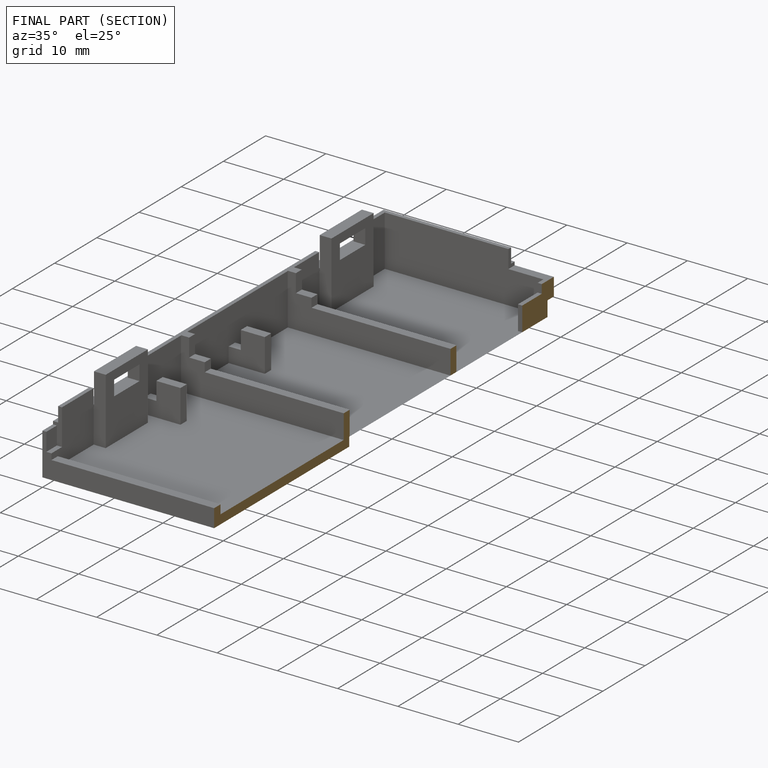
[diagram: finished part — half-section view (interior)]
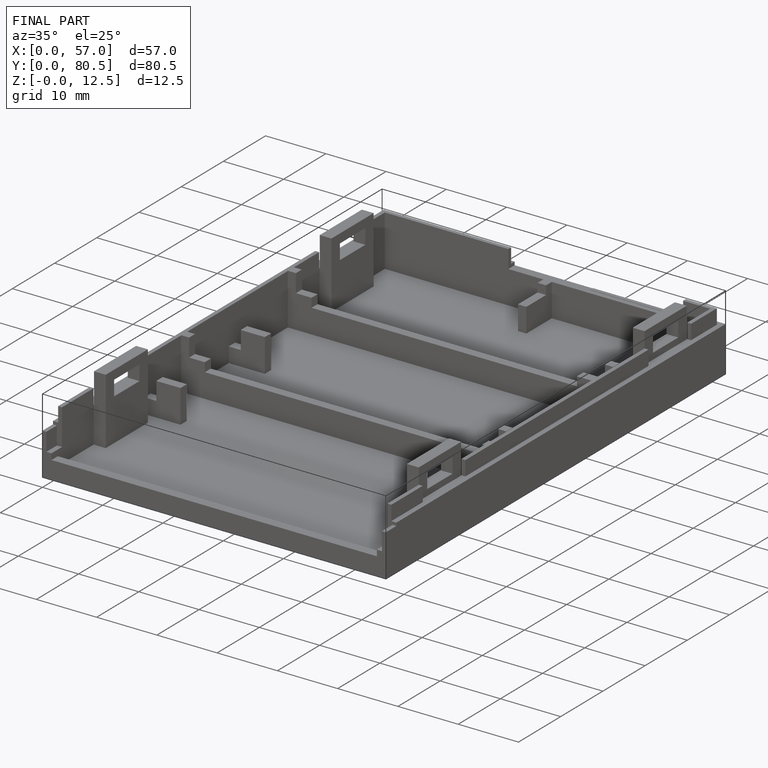
[diagram: finished part — iso view with bounding-box wireframe]
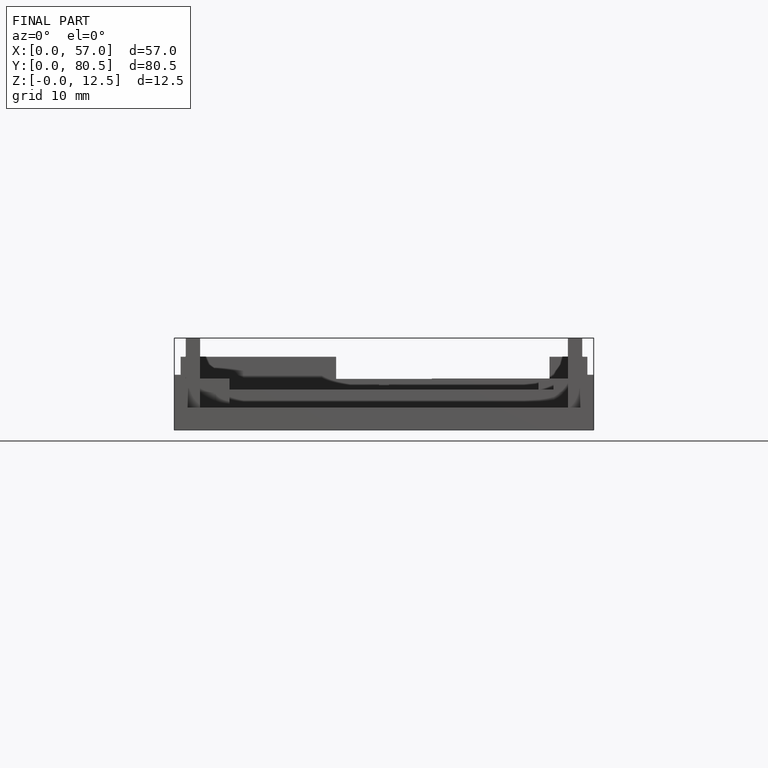
[diagram: finished part — front view with bounding-box wireframe]
